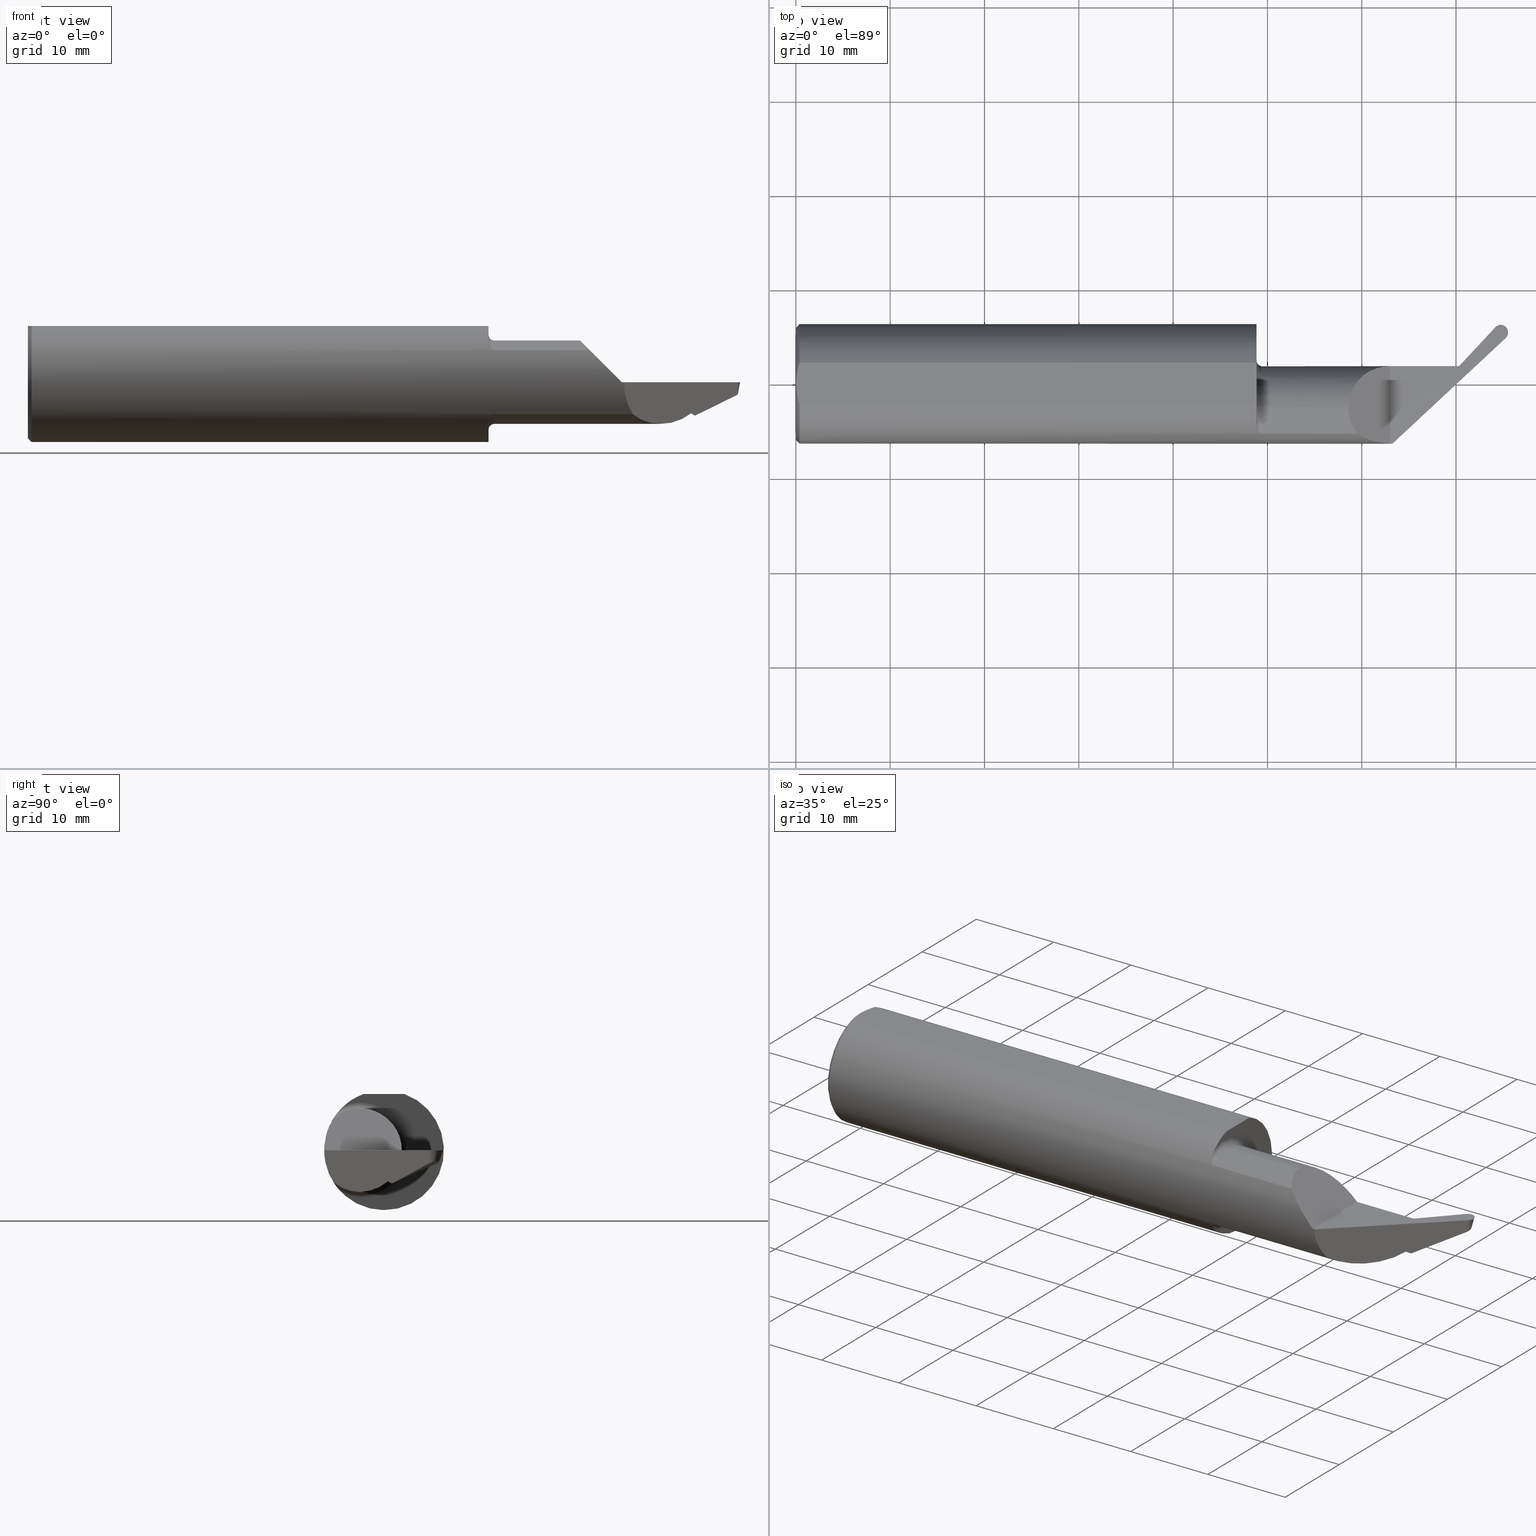
[diagram: canonical four-view strip — front | top / right | iso, engineering-drawing reading convention]
A machine part, canonical four-view strip (front | top / right | iso — engineering-drawing reading convention). The complete STEP part file that produces these views, byte-faithful:
ISO-10303-21;
HEADER;
FILE_DESCRIPTION (( 'STEP AP203' ),
    '1' );
FILE_NAME ('220323-UP50062-16.STEP',
    '2025-04-15T20:54:29',
    ( '' ),
    ( '' ),
    'SwSTEP 2.0',
    'SolidWorks 2024',
    '' );
FILE_SCHEMA (( 'CONFIG_CONTROL_DESIGN' ));
ENDSEC;

DATA;
#1 = AXIS2_PLACEMENT_3D ( 'NONE', #637, #571, #766 ) ;
#2 = CARTESIAN_POINT ( 'NONE',  ( 2.751478675528472806, 0.04932269850193316679, -0.08977927160268989182 ) ) ;
#3 = DIRECTION ( 'NONE',  ( -1.000000000000000000, -0.000000000000000000, -0.000000000000000000 ) ) ;
#4 = ORIENTED_EDGE ( 'NONE', *, *, #818, .T. ) ;
#5 = LENGTH_MEASURE_WITH_UNIT ( LENGTH_MEASURE( 0.02539999999999999897 ), #569 );
#6 = CARTESIAN_POINT ( 'NONE',  ( 2.919320466525810787, 0.2420750995226123858, 0.01553420954347928262 ) ) ;
#7 = CARTESIAN_POINT ( 'NONE',  ( 2.920485636251496597, 0.2372213815312202712, -5.510728592200695567E-17 ) ) ;
#8 = ORIENTED_EDGE ( 'NONE', *, *, #364, .T. ) ;
#9 = CARTESIAN_POINT ( 'NONE',  ( 2.480000000000000426, 0.2500000000000000000, -5.510728592200697415E-17 ) ) ;
#10 = CARTESIAN_POINT ( 'NONE',  ( 2.768419112856319586, 0.02761542476123012013, -0.1184422453791082047 ) ) ;
#11 = EDGE_LOOP ( 'NONE', ( #549, #553, #541, #175, #668, #491 ) ) ;
#12 = APPROVAL_PERSON_ORGANIZATION ( #247, #675, #119 ) ;
#13 = DIRECTION ( 'NONE',  ( 1.000000000000000000, -0.000000000000000000, -0.000000000000000000 ) ) ;
#14 = AXIS2_PLACEMENT_3D ( 'NONE', #771, #385, #514 ) ;
#15 = PLANE ( 'NONE',  #730 ) ;
#16 = AXIS2_PLACEMENT_3D ( 'NONE', #799, #417, #740 ) ;
#17 = DIRECTION ( 'NONE',  ( 0.000000000000000000, 0.000000000000000000, 1.000000000000000000 ) ) ;
#18 = DIRECTION ( 'NONE',  ( -0.6954206866754736316, -0.6321757989175356141, -0.3416779592054307590 ) ) ;
#19 = DIRECTION ( 'NONE',  ( 0.000000000000000000, 0.000000000000000000, 1.000000000000000000 ) ) ;
#20 = CARTESIAN_POINT ( 'NONE',  ( 2.956200874936907308, 0.2246758125672123629, -0.04600076249345846913 ) ) ;
#21 = CARTESIAN_POINT ( 'NONE',  ( 2.959241278066107927, 0.1888021514202671003, -0.02664907259946664581 ) ) ;
#22 = CARTESIAN_POINT ( 'NONE',  ( 1.944666560440263758, -0.2105968497256111849, 0.1344424988095964946 ) ) ;
#23 = CARTESIAN_POINT ( 'NONE',  ( 2.487763352469697598, -0.2498500000000000443, -0.04776250763339755928 ) ) ;
#24 = ADVANCED_FACE ( 'NONE', ( #712 ), #780, .T. ) ;
#25 = FACE_OUTER_BOUND ( 'NONE', #221, .T. ) ;
#26 = AXIS2_PLACEMENT_3D ( 'NONE', #485, #222, #795 ) ;
#27 = FACE_OUTER_BOUND ( 'NONE', #697, .T. ) ;
#28 = AXIS2_PLACEMENT_3D ( 'NONE', #643, #811, #367 ) ;
#29 = DIRECTION ( 'NONE',  ( 1.000000000000000000, 0.000000000000000000, 0.000000000000000000 ) ) ;
#30 = CARTESIAN_POINT ( 'NONE',  ( 2.960334798754022945, 0.1894423975373079327, -0.01870156880024754706 ) ) ;
#31 = ORIENTED_EDGE ( 'NONE', *, *, #350, .F. ) ;
#32 = LINE ( 'NONE', #286, #718 ) ;
#33 = CARTESIAN_POINT ( 'NONE',  ( 2.785170687796944211, 0.03187374538234199334, -0.1396387492611713965 ) ) ;
#34 = ADVANCED_FACE ( 'NONE', ( #141 ), #465, .F. ) ;
#35 = ORIENTED_EDGE ( 'NONE', *, *, #667, .F. ) ;
#36 = CARTESIAN_POINT ( 'NONE',  ( 1.948000000000000176, -0.09985000000000003595, 0.000000000000000000 ) ) ;
#37 = DIRECTION ( 'NONE',  ( -1.000000000000000000, -0.000000000000000000, -0.000000000000000000 ) ) ;
#38 = CIRCLE ( 'NONE', #454, 0.2348499999999984211 ) ;
#39 = ORIENTED_EDGE ( 'NONE', *, *, #324, .F. ) ;
#40 = CARTESIAN_POINT ( 'NONE',  ( 2.432237492366603249, -0.2498499999999999888, 0.04776250763339776745 ) ) ;
#41 = CARTESIAN_POINT ( 'NONE',  ( 2.606161487868354332, -0.09984999999999219500, -3.075686157521432159E-15 ) ) ;
#42 = ORIENTED_EDGE ( 'NONE', *, *, #220, .F. ) ;
#43 = CARTESIAN_POINT ( 'NONE',  ( 2.480000000000000426, -0.2498499999999999888, -5.510728592200697415E-17 ) ) ;
#44 = CC_DESIGN_PERSON_AND_ORGANIZATION_ASSIGNMENT ( #310, #558, ( #199 ) ) ;
#45 = CARTESIAN_POINT ( 'NONE',  ( 2.306000000000003158, -0.09985000000000000819, 0.1740000000000000435 ) ) ;
#46 = ORIENTED_EDGE ( 'NONE', *, *, #645, .F. ) ;
#47 = CALENDAR_DATE ( 2025, 15, 4 ) ;
#48 = EDGE_CURVE ( 'NONE', #305, #483, #503, .T. ) ;
#49 = CARTESIAN_POINT ( 'NONE',  ( 2.758993738773280580, 0.07310948323515102654, -0.02234505378485414015 ) ) ;
#50 = EDGE_CURVE ( 'NONE', #309, #124, #742, .T. ) ;
#51 = AXIS2_PLACEMENT_3D ( 'NONE', #432, #694, #804 ) ;
#52 = VERTEX_POINT ( 'NONE', #83 ) ;
#53 = CIRCLE ( 'NONE', #522, 0.02499999999999993894 ) ;
#54 = CONICAL_SURFACE ( 'NONE', #805, 0.2498499999999999888, 0.7853981633974380649 ) ;
#55 = CARTESIAN_POINT ( 'NONE',  ( 2.985520321593003068, 0.2153878141893401654, -0.07021221020933798851 ) ) ;
#56 = CARTESIAN_POINT ( 'NONE',  ( 0.000000000000000000, 0.000000000000000000, 0.000000000000000000 ) ) ;
#57 = EDGE_LOOP ( 'NONE', ( #243, #35, #351, #313 ) ) ;
#58 = CARTESIAN_POINT ( 'NONE',  ( 0.006561672718762606021, -0.05761982577936749367, 0.2348499999999999754 ) ) ;
#59 = CARTESIAN_POINT ( 'NONE',  ( 2.759505836988604077, 0.02821845109425849887, -0.1183330138671340043 ) ) ;
#60 = CARTESIAN_POINT ( 'NONE',  ( 2.921869411792910487, 0.2314570228345983471, -0.01844869356567125848 ) ) ;
#61 = EDGE_CURVE ( 'NONE', #226, #687, #544, .T. ) ;
#62 = VERTEX_POINT ( 'NONE', #627 ) ;
#63 = EDGE_CURVE ( 'NONE', #414, #226, #689, .T. ) ;
#64 = CARTESIAN_POINT ( 'NONE',  ( 2.955837149670754282, 0.2480764611098156824, -0.06886124029207293940 ) ) ;
#65 = CARTESIAN_POINT ( 'NONE',  ( 2.924636962875720947, 0.2199283054413707916, -0.05534608069692982524 ) ) ;
#66 = ORIENTED_EDGE ( 'NONE', *, *, #379, .F. ) ;
#67 = DATE_AND_TIME ( #640, #508 ) ;
#68 = CARTESIAN_POINT ( 'NONE',  ( 3.000307529027996356, 0.2273532975861257965, -0.03201572524959440252 ) ) ;
#69 = DIRECTION ( 'NONE',  ( 0.000000000000000000, 0.000000000000000000, 1.000000000000000000 ) ) ;
#70 = VERTEX_POINT ( 'NONE', #312 ) ;
#71 = CARTESIAN_POINT ( 'NONE',  ( 2.983911094868410885, 0.2140856632767930423, -0.07436896561146141837 ) ) ;
#72 = CARTESIAN_POINT ( 'NONE',  ( 1.948000000000000176, -0.09985000000000000819, 0.000000000000000000 ) ) ;
#73 = ORIENTED_EDGE ( 'NONE', *, *, #139, .T. ) ;
#74 = EDGE_CURVE ( 'NONE', #419, #565, #663, .T. ) ;
#75 = CARTESIAN_POINT ( 'NONE',  ( 2.768419112856319586, -0.09985000000000000819, 0.000000000000000000 ) ) ;
#76 = DIRECTION ( 'NONE',  ( 0.6819983600625044717, 0.7313537016191651308, 0.000000000000000000 ) ) ;
#77 = CARTESIAN_POINT ( 'NONE',  ( 2.926788729405443767, 0.2227290405431770759, -0.05407147604951945824 ) ) ;
#78 = CONICAL_SURFACE ( 'NONE', #585, 0.2498499999999999888, 0.7853981633974380649 ) ;
#79 = CARTESIAN_POINT ( 'NONE',  ( 2.306000000000002714, -0.1408247075240017798, 0.1740000000000000435 ) ) ;
#80 = ORIENTED_EDGE ( 'NONE', *, *, #786, .F. ) ;
#81 = EDGE_CURVE ( 'NONE', #683, #386, #613, .T. ) ;
#82 = DIRECTION ( 'NONE',  ( 0.000000000000000000, 0.000000000000000000, -1.000000000000000000 ) ) ;
#83 = CARTESIAN_POINT ( 'NONE',  ( 1.923000000000000265, -0.08526722699841958464, 0.2348499999999999477 ) ) ;
#84 = PRODUCT_RELATED_PRODUCT_CATEGORY ( 'detail', '', ( #194 ) ) ;
#85 = CARTESIAN_POINT ( 'NONE',  ( 3.000000000000000444, -0.2498499999999999333, -5.510728592200695567E-17 ) ) ;
#86 = B_SPLINE_CURVE_WITH_KNOTS ( 'NONE', 3,
 ( #538, #87, #30, #650 ),
 .UNSPECIFIED., .F., .F.,
 ( 4, 4 ),
 ( 0.000000000000000000, 1.000000000000000000 ),
 .UNSPECIFIED. ) ;
#87 = CARTESIAN_POINT ( 'NONE',  ( 2.957761594274301409, 0.1879358104240662075, -0.03740313760011752114 ) ) ;
#88 = EDGE_CURVE ( 'NONE', #300, #309, #548, .T. ) ;
#89 = CARTESIAN_POINT ( 'NONE',  ( 2.962990917053675677, 0.1965344664170224909, -0.05149585838116387676 ) ) ;
#90 = CARTESIAN_POINT ( 'NONE',  ( 2.954196473978710102, 0.1858484658943857504, -0.06331376499613884656 ) ) ;
#91 = DIRECTION ( 'NONE',  ( 0.7071067811865547892, 0.000000000000000000, -0.7071067811865402453 ) ) ;
#92 = CARTESIAN_POINT ( 'NONE',  ( 4.179637565737080784, 1.327902553637404726, -0.6607321790986963039 ) ) ;
#93 = CIRCLE ( 'NONE', #26, 0.2498499999999999888 ) ;
#94 = DIRECTION ( 'NONE',  ( 1.000000000000000000, 0.000000000000000000, 0.000000000000000000 ) ) ;
#95 = VECTOR ( 'NONE', #261, 39.37007874015748854 ) ;
#96 = CIRCLE ( 'NONE', #200, 0.2498499999999999888 ) ;
#97 = ORIENTED_EDGE ( 'NONE', *, *, #63, .F. ) ;
#98 = LINE ( 'NONE', #290, #276 ) ;
#99 = FACE_OUTER_BOUND ( 'NONE', #727, .T. ) ;
#100 = ORIENTED_EDGE ( 'NONE', *, *, #645, .T. ) ;
#101 = CARTESIAN_POINT ( 'NONE',  ( 2.346054777255357937, -0.2109115923885826471, 0.1339452227446442378 ) ) ;
#102 = PLANE ( 'NONE',  #624 ) ;
#103 = ORIENTED_EDGE ( 'NONE', *, *, #61, .T. ) ;
#104 = CARTESIAN_POINT ( 'NONE',  ( 2.786946298892241547, 0.03635597488645453401, -0.1380281949788706997 ) ) ;
#105 = VECTOR ( 'NONE', #739, 39.37007874015748143 ) ;
#106 = ORIENTED_EDGE ( 'NONE', *, *, #137, .F. ) ;
#107 = CARTESIAN_POINT ( 'NONE',  ( 4.760433543769110433E-16, -0.007307070001631061316, 0.2348499999999999199 ) ) ;
#108 = CARTESIAN_POINT ( 'NONE',  ( 1.948000000000000176, -0.09985000000000000819, -0.1990000000000001767 ) ) ;
#109 = ADVANCED_FACE ( 'NONE', ( #509 ), #692, .F. ) ;
#110 = ORIENTED_EDGE ( 'NONE', *, *, #139, .F. ) ;
#111 = DIRECTION ( 'NONE',  ( -0.7071067811865527908, 0.000000000000000000, -0.7071067811865423547 ) ) ;
#112 = DIRECTION ( 'NONE',  ( 0.000000000000000000, 0.000000000000000000, 1.000000000000000000 ) ) ;
#113 = EDGE_CURVE ( 'NONE', #747, #309, #803, .T. ) ;
#114 = ORIENTED_EDGE ( 'NONE', *, *, #577, .F. ) ;
#115 = CARTESIAN_POINT ( 'NONE',  ( 2.924621110822715142, 0.2199943399367920438, -0.05513473885740226982 ) ) ;
#116 = DIRECTION ( 'NONE',  ( 0.9684408309910902402, 0.000000000000000000, 0.2492435693639586669 ) ) ;
#117 = ORIENTED_EDGE ( 'NONE', *, *, #714, .F. ) ;
#118 = AXIS2_PLACEMENT_3D ( 'NONE', #146, #394, #773 ) ;
#119 = APPROVAL_ROLE ( '' ) ;
#120 = VECTOR ( 'NONE', #155, 39.37007874015748143 ) ;
#121 = CARTESIAN_POINT ( 'NONE',  ( 2.764144533880795063, 0.02000971208806607421, -0.1261334587576356525 ) ) ;
#122 = CARTESIAN_POINT ( 'NONE',  ( 1.948000000000000176, -0.09984999999999999432, -0.1740000000000001545 ) ) ;
#123 = EDGE_CURVE ( 'NONE', #386, #683, #38, .T. ) ;
#124 = VERTEX_POINT ( 'NONE', #122 ) ;
#125 = CARTESIAN_POINT ( 'NONE',  ( 2.961857614889307655, 0.2696963352741157394, -0.03026575467833236832 ) ) ;
#126 = FACE_OUTER_BOUND ( 'NONE', #172, .T. ) ;
#127 = EDGE_LOOP ( 'NONE', ( #255, #73, #510, #292, #358, #114 ) ) ;
#128 = COORDINATED_UNIVERSAL_TIME_OFFSET ( 8, 0, .BEHIND. ) ;
#129 = CARTESIAN_POINT ( 'NONE',  ( 2.750471965009137598, 0.05521386511995243079, -0.07917076052381598339 ) ) ;
#130 = CARTESIAN_POINT ( 'NONE',  ( 2.959328683422393524, 0.2434462109997723167, -5.510728592200696183E-17 ) ) ;
#131 = ORIENTED_EDGE ( 'NONE', *, *, #472, .F. ) ;
#132 =( GEOMETRIC_REPRESENTATION_CONTEXT ( 3 ) GLOBAL_UNCERTAINTY_ASSIGNED_CONTEXT ( ( #161 ) ) GLOBAL_UNIT_ASSIGNED_CONTEXT ( ( #688, #376, #441 ) ) REPRESENTATION_CONTEXT ( 'NONE', 'WORKASPACE' ) );
#133 = AXIS2_PLACEMENT_3D ( 'NONE', #787, #525, #323 ) ;
#134 = CARTESIAN_POINT ( 'NONE',  ( 2.923726509254032546, 0.2237209590150790739, -0.04320778270685891875 ) ) ;
#135 = CARTESIAN_POINT ( 'NONE',  ( 2.970069962662356122, 0.2296802198213067359, -5.510728592200697415E-17 ) ) ;
#136 = CARTESIAN_POINT ( 'NONE',  ( 2.957453567960029339, 0.2234638308222315628, -0.04599028480194394808 ) ) ;
#137 = EDGE_CURVE ( 'NONE', #144, #419, #327, .T. ) ;
#138 = CARTESIAN_POINT ( 'NONE',  ( 0.01500000000000188856, 0.000000000000000000, 0.000000000000000000 ) ) ;
#139 = EDGE_CURVE ( 'NONE', #62, #414, #633, .T. ) ;
#140 = DIRECTION ( 'NONE',  ( 0.000000000000000000, 0.000000000000000000, 1.000000000000000000 ) ) ;
#141 = FACE_OUTER_BOUND ( 'NONE', #716, .T. ) ;
#142 = EDGE_CURVE ( 'NONE', #576, #738, #750, .T. ) ;
#143 = CARTESIAN_POINT ( 'NONE',  ( 2.956756075898843594, 0.1873470888364410225, -0.04471105705483745252 ) ) ;
#144 = VERTEX_POINT ( 'NONE', #10 ) ;
#145 = CARTESIAN_POINT ( 'NONE',  ( 1.937292829746335432, -0.2068995363356189443, 0.1400856398677443326 ) ) ;
#146 = CARTESIAN_POINT ( 'NONE',  ( 0.000000000000000000, 0.1499999999999999944, 0.2348499999999999477 ) ) ;
#147 = CARTESIAN_POINT ( 'NONE',  ( 2.962820000921344565, 0.1908974601211759492, -0.0006395843446254406055 ) ) ;
#148 = ADVANCED_FACE ( 'NONE', ( #126 ), #378, .T. ) ;
#149 = AXIS2_PLACEMENT_3D ( 'NONE', #198, #459, #721 ) ;
#150 = CARTESIAN_POINT ( 'NONE',  ( 1.924856958242081584, -0.1832683170044287491, 0.1699454654953807820 ) ) ;
#151 = EDGE_CURVE ( 'NONE', #434, #300, #387, .T. ) ;
#152 = CARTESIAN_POINT ( 'NONE',  ( 2.963999813727558053, 0.2050836840735432154, -0.04903592644122235777 ) ) ;
#153 = CARTESIAN_POINT ( 'NONE',  ( 2.963324389953210236, 0.1911927751734701364, 0.003026220784801054043 ) ) ;
#154 = CARTESIAN_POINT ( 'NONE',  ( 1.948000000000000176, -0.2109115923885828414, -0.1339452227446441546 ) ) ;
#155 = DIRECTION ( 'NONE',  ( -1.000000000000000000, -0.000000000000000000, -0.000000000000000000 ) ) ;
#156 = CARTESIAN_POINT ( 'NONE',  ( 2.525106817358469868, -0.2109115923885827859, -0.1339452227446440713 ) ) ;
#157 = CARTESIAN_POINT ( 'NONE',  ( 0.000000000000000000, 0.000000000000000000, -0.2348499999999984211 ) ) ;
#158 = CARTESIAN_POINT ( 'NONE',  ( 0.01500000000000188856, 0.08526722699841957076, 0.2348499999999999477 ) ) ;
#159 = VECTOR ( 'NONE', #297, 39.37007874015748143 ) ;
#160 = ORIENTED_EDGE ( 'NONE', *, *, #50, .F. ) ;
#161 = UNCERTAINTY_MEASURE_WITH_UNIT (LENGTH_MEASURE( 1.000000000000000082E-05 ), #688, 'distance_accuracy_value', 'NONE');
#162 = DIRECTION ( 'NONE',  ( 1.000000000000000000, -0.000000000000000000, -0.000000000000000000 ) ) ;
#163 = CARTESIAN_POINT ( 'NONE',  ( 1.923000000000000043, -0.1743076965831586722, -0.1795024430660134840 ) ) ;
#164 = B_SPLINE_CURVE_WITH_KNOTS ( 'NONE', 3,
 ( #423, #107, #355, #617, #820, #58, #306, #176 ),
 .UNSPECIFIED., .F., .F.,
 ( 4, 2, 2, 4 ),
 ( 0.007188111787249049436, 0.007736101870951915191, 0.008284091954654780945, 0.009380072122060512455 ),
 .UNSPECIFIED. ) ;
#165 = ORIENTED_EDGE ( 'NONE', *, *, #88, .T. ) ;
#166 = CARTESIAN_POINT ( 'NONE',  ( 2.386373634735572402, -0.2365171946451294638, 0.09362636526442918994 ) ) ;
#167 = CARTESIAN_POINT ( 'NONE',  ( 1.923000000000000265, -0.1642165498247367128, -0.1883028073706277949 ) ) ;
#168 = EDGE_LOOP ( 'NONE', ( #622, #384, #568, #183 ) ) ;
#169 = CARTESIAN_POINT ( 'NONE',  ( 2.346054777255357937, -0.2109115923885826471, 0.1339452227446442378 ) ) ;
#170 = FACE_OUTER_BOUND ( 'NONE', #513, .T. ) ;
#171 = EDGE_CURVE ( 'NONE', #62, #483, #453, .T. ) ;
#172 = EDGE_LOOP ( 'NONE', ( #498, #676, #187, #608, #757, #426, #42, #557, #246, #100, #751, #250, #31 ) ) ;
#173 = CARTESIAN_POINT ( 'NONE',  ( 1.923000000000000265, -0.09984999999999999432, -0.1740000000000000435 ) ) ;
#174 = DIRECTION ( 'NONE',  ( 0.000000000000000000, 0.000000000000000000, -1.000000000000000000 ) ) ;
#175 = ORIENTED_EDGE ( 'NONE', *, *, #418, .F. ) ;
#176 = CARTESIAN_POINT ( 'NONE',  ( 0.01500000000000187815, -0.08526722699841957076, 0.2348499999999999477 ) ) ;
#177 = CARTESIAN_POINT ( 'NONE',  ( 2.964459002465122062, 0.1918570801684355287, 0.01127237227428877844 ) ) ;
#178 = ORIENTED_EDGE ( 'NONE', *, *, #48, .F. ) ;
#179 = CARTESIAN_POINT ( 'NONE',  ( 2.924803103386683034, 0.2192362181263609322, -0.05756108976694612744 ) ) ;
#180 = ADVANCED_FACE ( 'NONE', ( #458 ), #572, .F. ) ;
#181 = DIRECTION ( 'NONE',  ( 0.000000000000000000, 0.000000000000000000, -1.000000000000000000 ) ) ;
#182 = SECURITY_CLASSIFICATION ( '', '', #630 ) ;
#183 = ORIENTED_EDGE ( 'NONE', *, *, #113, .T. ) ;
#184 = CIRCLE ( 'NONE', #720, 0.2498499999999999888 ) ;
#185 = CARTESIAN_POINT ( 'NONE',  ( 2.922358585765525429, 0.2294192832161828788, -0.02497043098068999628 ) ) ;
#186 = CARTESIAN_POINT ( 'NONE',  ( 2.972643988176406182, 0.2240735943474627678, -5.510728592200698648E-17 ) ) ;
#187 = ORIENTED_EDGE ( 'NONE', *, *, #577, .T. ) ;
#188 = PERSON_AND_ORGANIZATION_ROLE ( 'classification_officer' ) ;
#189 = CARTESIAN_POINT ( 'NONE',  ( 3.009254293762318788, 0.2345928230579831519, -0.008905549368366313598 ) ) ;
#190 = B_SPLINE_CURVE_WITH_KNOTS ( 'NONE', 3,
 ( #158, #223, #552, #555 ),
 .UNSPECIFIED., .F., .F.,
 ( 4, 4 ),
 ( 0.004994743219357597463, 0.007188111787249049436 ),
 .UNSPECIFIED. ) ;
#191 = DIRECTION ( 'NONE',  ( -0.2418447626479795498, -0.2418447626479768853, 0.9396926207859068736 ) ) ;
#192 =( BOUNDED_CURVE ( )  B_SPLINE_CURVE ( 3, ( #524, #724, #79, #713 ),
 .UNSPECIFIED., .F., .T. ) 
 B_SPLINE_CURVE_WITH_KNOTS ( ( 4, 4 ),
 ( 5.590916938044860451, 6.283185307179586232 ),
 .UNSPECIFIED. ) 
 CURVE ( )  GEOMETRIC_REPRESENTATION_ITEM ( )  RATIONAL_B_SPLINE_CURVE ( ( 1.000000000000000000, 0.9604608466326349792, 0.9604608466326349792, 1.000000000000000000 ) ) 
 REPRESENTATION_ITEM ( '' )  );
#193 = APPROVAL ( #241, 'UNSPECIFIED' ) ;
#194 = PRODUCT ( '220323-UP50062-16', '220323-UP50062-16', '', ( #562 ) ) ;
#195 = ORIENTED_EDGE ( 'NONE', *, *, #759, .F. ) ;
#196 = CARTESIAN_POINT ( 'NONE',  ( 2.985593596869578814, 0.2154471069333668554, -0.07002293457956768052 ) ) ;
#197 = CARTESIAN_POINT ( 'NONE',  ( 2.973463357364606985, 0.2178119426117045565, -5.510728592200697415E-17 ) ) ;
#198 = CARTESIAN_POINT ( 'NONE',  ( 1.923000000000000265, 0.09915000000000015468, 0.000000000000000000 ) ) ;
#199 = PRODUCT_DEFINITION_FORMATION_WITH_SPECIFIED_SOURCE ( 'ANY', '', #194, .NOT_KNOWN. ) ;
#200 = AXIS2_PLACEMENT_3D ( 'NONE', #594, #13, #529 ) ;
#201 = CARTESIAN_POINT ( 'NONE',  ( 2.765672377942582028, 0.02262425438727416749, -0.1236489610651841375 ) ) ;
#202 = CARTESIAN_POINT ( 'NONE',  ( 1.465514825093801932, 1.715364825093786516, -0.04599999999999999922 ) ) ;
#203 = ORIENTED_EDGE ( 'NONE', *, *, #679, .T. ) ;
#204 = CARTESIAN_POINT ( 'NONE',  ( 2.785170687796944211, 0.03187374538234199334, -0.1396387492611713965 ) ) ;
#205 = DIRECTION ( 'NONE',  ( 0.6819983600625090236, 0.7313537016191605789, 0.000000000000000000 ) ) ;
#206 = ORIENTED_EDGE ( 'NONE', *, *, #50, .T. ) ;
#207 = APPROVAL_DATE_TIME ( #777, #490 ) ;
#208 = ADVANCED_FACE ( 'NONE', ( #329 ), #15, .F. ) ;
#209 = DIRECTION ( 'NONE',  ( -1.000000000000000000, -0.000000000000000000, -0.000000000000000000 ) ) ;
#210 = LINE ( 'NONE', #266, #411 ) ;
#211 = ORIENTED_EDGE ( 'NONE', *, *, #338, .F. ) ;
#212 = CYLINDRICAL_SURFACE ( 'NONE', #224, 0.1740000000000000435 ) ;
#213 = CIRCLE ( 'NONE', #133, 0.1740000000000001545 ) ;
#214 = CARTESIAN_POINT ( 'NONE',  ( 1.931171543247812039, -0.1999759995858462480, 0.1499037593488199704 ) ) ;
#215 = CARTESIAN_POINT ( 'NONE',  ( 2.940340066052640644, 0.2293452590027351690, -0.04888103667594673185 ) ) ;
#216 = CARTESIAN_POINT ( 'NONE',  ( 2.767097696724142519, 0.02516030885774150905, -0.1210843971761442067 ) ) ;
#217 = CARTESIAN_POINT ( 'NONE',  ( 1.923369308096891217, -0.1740236709404001658, 0.1794003879942982493 ) ) ;
#218 = CARTESIAN_POINT ( 'NONE',  ( 2.642154845230877402, -0.09984999999999999432, -0.1740000000000000435 ) ) ;
#219 = CARTESIAN_POINT ( 'NONE',  ( 1.937241547894475113, -0.2068583287092629897, -0.1401468808397461907 ) ) ;
#220 = EDGE_CURVE ( 'NONE', #52, #434, #184, .T. ) ;
#221 = EDGE_LOOP ( 'NONE', ( #422, #634, #160, #117, #518, #638, #289, #431, #361 ) ) ;
#222 = DIRECTION ( 'NONE',  ( 1.000000000000000000, -0.000000000000000000, -0.000000000000000000 ) ) ;
#223 = CARTESIAN_POINT ( 'NONE',  ( 0.005550618807728169291, 0.05757865339283836648, 0.2348499999999999477 ) ) ;
#224 = AXIS2_PLACEMENT_3D ( 'NONE', #328, #408, #781 ) ;
#225 = EDGE_CURVE ( 'NONE', #124, #70, #213, .T. ) ;
#226 = VERTEX_POINT ( 'NONE', #719 ) ;
#227 = CC_DESIGN_PERSON_AND_ORGANIZATION_ASSIGNMENT ( #753, #447, ( #199 ) ) ;
#228 = CARTESIAN_POINT ( 'NONE',  ( 2.378073159852920337, 0.07415000000000004921, 0.1019268401470814489 ) ) ;
#229 = VERTEX_POINT ( 'NONE', #659 ) ;
#230 = B_SPLINE_CURVE_WITH_KNOTS ( 'NONE', 3,
 ( #33, #104, #291, #233 ),
 .UNSPECIFIED., .F., .F.,
 ( 4, 4 ),
 ( 0.001035967809282138533, 0.001423204942847076850 ),
 .UNSPECIFIED. ) ;
#231 = DIRECTION ( 'NONE',  ( -1.000000000000000000, -0.000000000000000000, -0.000000000000000000 ) ) ;
#232 = EDGE_CURVE ( 'NONE', #642, #226, #210, .T. ) ;
#233 = CARTESIAN_POINT ( 'NONE',  ( 2.790784401504194712, 0.04518502136800224556, -0.1347681037552297678 ) ) ;
#234 = EDGE_LOOP ( 'NONE', ( #450, #295 ) ) ;
#235 = LINE ( 'NONE', #420, #366 ) ;
#236 = CYLINDRICAL_SURFACE ( 'NONE', #412, 0.1740000000000000435 ) ;
#237 = CC_DESIGN_APPROVAL ( #675, ( #335 ) ) ;
#238 = VECTOR ( 'NONE', #534, 39.37007874015748143 ) ;
#239 = CLOSED_SHELL ( 'NONE', ( #445, #180, #606, #580, #493, #526, #628, #655, #109, #148, #34, #566, #672, #409, #726, #807, #24, #460, #208, #284 ) ) ;
#240 = ORIENTED_EDGE ( 'NONE', *, *, #171, .T. ) ;
#241 = APPROVAL_STATUS ( 'not_yet_approved' ) ;
#242 = CARTESIAN_POINT ( 'NONE',  ( 2.965062680611385115, 0.1922105280669126337, 0.01565979211372933375 ) ) ;
#243 = ORIENTED_EDGE ( 'NONE', *, *, #810, .F. ) ;
#244 = CARTESIAN_POINT ( 'NONE',  ( 2.750324424188840933, 0.05790952544216176889, -0.07365018080836756298 ) ) ;
#245 = CARTESIAN_POINT ( 'NONE',  ( 2.967964022025022075, 0.2332724087456661544, -5.510728592200697415E-17 ) ) ;
#246 = ORIENTED_EDGE ( 'NONE', *, *, #736, .T. ) ;
#247 = PERSON_AND_ORGANIZATION ( #430, #600 ) ;
#248 = CARTESIAN_POINT ( 'NONE',  ( 2.965812875359780332, 0.2838999276135536487, -0.004909707753859851413 ) ) ;
#249 = CARTESIAN_POINT ( 'NONE',  ( 2.768419112856319586, 0.01579291558687999364, -0.1300104460209476342 ) ) ;
#250 = ORIENTED_EDGE ( 'NONE', *, *, #429, .F. ) ;
#251 = AXIS2_PLACEMENT_3D ( 'NONE', #320, #647, #69 ) ;
#252 = CARTESIAN_POINT ( 'NONE',  ( 2.965500201641321443, 0.2827770963699809958, -0.006914169795889478845 ) ) ;
#253 = CC_DESIGN_PERSON_AND_ORGANIZATION_ASSIGNMENT ( #758, #188, ( #182 ) ) ;
#254 = CARTESIAN_POINT ( 'NONE',  ( 2.773993255702161154, 0.02114554192837313218, -0.1332494012405315009 ) ) ;
#255 = ORIENTED_EDGE ( 'NONE', *, *, #171, .F. ) ;
#256 = CARTESIAN_POINT ( 'NONE',  ( 2.987661221085930130, 0.2171201830257414866, -0.06468210348397136766 ) ) ;
#257 = DIRECTION ( 'NONE',  ( 0.000000000000000000, 0.000000000000000000, 1.000000000000000000 ) ) ;
#258 = EDGE_LOOP ( 'NONE', ( #346, #396, #573, #731, #495, #469 ) ) ;
#259 = APPROVAL_ROLE ( '' ) ;
#260 = LINE ( 'NONE', #85, #120 ) ;
#261 = DIRECTION ( 'NONE',  ( -0.7313537016191669071, -0.6819983600625022513, 0.000000000000000000 ) ) ;
#262 = ORIENTED_EDGE ( 'NONE', *, *, #714, .T. ) ;
#263 = AXIS2_PLACEMENT_3D ( 'NONE', #202, #191, #116 ) ;
#264 = CONICAL_SURFACE ( 'NONE', #299, 0.1739999999999999880, 0.8203047484373228171 ) ;
#265 = CARTESIAN_POINT ( 'NONE',  ( 2.962731998608899797, 0.1908459355917786204, -0.001279168689276280598 ) ) ;
#266 = CARTESIAN_POINT ( 'NONE',  ( 3.087804721731443713, 0.4329423093960939606, 0.04147024745865552503 ) ) ;
#267 = CARTESIAN_POINT ( 'NONE',  ( 2.939986576595883694, 0.2292964530446391369, -0.04898457376559436222 ) ) ;
#268 = EDGE_CURVE ( 'NONE', #683, #680, #476, .T. ) ;
#269 = DIRECTION ( 'NONE',  ( 1.000000000000000000, -0.000000000000000000, -0.000000000000000000 ) ) ;
#270 = CARTESIAN_POINT ( 'NONE',  ( 0.01500000000000188856, 0.000000000000000000, -0.2498499999999999888 ) ) ;
#271 = CARTESIAN_POINT ( 'NONE',  ( 2.963094408062943330, 0.2151718262580614438, -0.04667260391959004995 ) ) ;
#272 = CARTESIAN_POINT ( 'NONE',  ( 2.764144533880795063, 0.02000971208806607421, -0.1261334587576356525 ) ) ;
#273 = CARTESIAN_POINT ( 'NONE',  ( 3.826420851464049200, 1.657282468372987871, -0.7901417016499502344 ) ) ;
#274 = CARTESIAN_POINT ( 'NONE',  ( 2.960114955327068920, 0.1909213814978031609, -0.05368064883897383233 ) ) ;
#275 =( BOUNDED_CURVE ( )  B_SPLINE_CURVE ( 3, ( #542, #410, #677, #218 ),
 .UNSPECIFIED., .F., .T. ) 
 B_SPLINE_CURVE_WITH_KNOTS ( ( 4, 4 ),
 ( 0.8308160677390153959, 1.523084436873744174 ),
 .UNSPECIFIED. ) 
 CURVE ( )  GEOMETRIC_REPRESENTATION_ITEM ( )  RATIONAL_B_SPLINE_CURVE ( ( 1.000000000000000000, 0.9604608466326346461, 0.9604608466326346461, 1.000000000000000000 ) ) 
 REPRESENTATION_ITEM ( '' )  );
#276 = VECTOR ( 'NONE', #344, 39.37007874015748143 ) ;
#277 = DIRECTION ( 'NONE',  ( -0.7064334285460631691, 0.6587598294711664026, -0.2588190451025079164 ) ) ;
#278 = CARTESIAN_POINT ( 'NONE',  ( 1.923000000000000265, 0.07414999999999999369, -5.510728592200695567E-17 ) ) ;
#279 = LINE ( 'NONE', #488, #105 ) ;
#280 = CARTESIAN_POINT ( 'NONE',  ( 1.944640240609051940, -0.2105909676090304827, -0.1344517602273910262 ) ) ;
#281 = VERTEX_POINT ( 'NONE', #715 ) ;
#282 = CARTESIAN_POINT ( 'NONE',  ( 2.768419112856319586, 0.01579291558687999364, -0.1300104460209476342 ) ) ;
#283 = CARTESIAN_POINT ( 'NONE',  ( 2.920485636251496597, 0.2372213815312202712, -5.510728592200695567E-17 ) ) ;
#284 = ADVANCED_FACE ( 'NONE', ( #27 ), #725, .F. ) ;
#285 = EDGE_LOOP ( 'NONE', ( #604, #103, #794, #767 ) ) ;
#286 = CARTESIAN_POINT ( 'NONE',  ( 1.923000000000000265, -0.09985000000000000819, 0.1740000000000000435 ) ) ;
#287 = AXIS2_PLACEMENT_3D ( 'NONE', #36, #612, #550 ) ;
#288 = DIRECTION ( 'NONE',  ( -0.7313537016191663520, -0.6819983600625026954, 0.000000000000000000 ) ) ;
#289 = ORIENTED_EDGE ( 'NONE', *, *, #507, .T. ) ;
#290 = CARTESIAN_POINT ( 'NONE',  ( 2.606161487868362325, -0.09985000000000000819, -5.510728592200695567E-17 ) ) ;
#291 = CARTESIAN_POINT ( 'NONE',  ( 2.788821398185262090, 0.04079124423844344288, -0.1364041217729991540 ) ) ;
#292 = ORIENTED_EDGE ( 'NONE', *, *, #303, .F. ) ;
#293 = PLANE ( 'NONE',  #792 ) ;
#294 = CARTESIAN_POINT ( 'NONE',  ( 2.480000000000000426, 0.07415000000000000757, -5.510728592200697415E-17 ) ) ;
#295 = ORIENTED_EDGE ( 'NONE', *, *, #81, .T. ) ;
#296 = APPROVAL_DATE_TIME ( #698, #193 ) ;
#297 = DIRECTION ( 'NONE',  ( 0.000000000000000000, -1.000000000000000000, 0.000000000000000000 ) ) ;
#298 = LOCAL_TIME ( 13, 54, 29.00000000000000000, #388 ) ;
#299 = AXIS2_PLACEMENT_3D ( 'NONE', #75, #322, #583 ) ;
#300 = VERTEX_POINT ( 'NONE', #586 ) ;
#301 = PERSON_AND_ORGANIZATION ( #430, #600 ) ;
#302 = CARTESIAN_POINT ( 'NONE',  ( 2.984679070592298533, 0.2147070923610409077, -0.07238522572524476451 ) ) ;
#303 = EDGE_CURVE ( 'NONE', #738, #281, #775, .T. ) ;
#304 = CARTESIAN_POINT ( 'NONE',  ( 2.962908003233793330, 0.1909489846505771082, 0.000000000000000000 ) ) ;
#305 = VERTEX_POINT ( 'NONE', #156 ) ;
#306 = CARTESIAN_POINT ( 'NONE',  ( 0.01031857118576194089, -0.07154970585445759312, 0.2348499999999999754 ) ) ;
#307 = CARTESIAN_POINT ( 'NONE',  ( 2.964756194820201696, 0.2801053204744628489, -0.01168378535206173255 ) ) ;
#308 = DIRECTION ( 'NONE',  ( -1.000000000000000000, -0.000000000000000000, -0.000000000000000000 ) ) ;
#309 = VERTEX_POINT ( 'NONE', #779 ) ;
#310 = PERSON_AND_ORGANIZATION ( #430, #600 ) ;
#311 = CARTESIAN_POINT ( 'NONE',  ( 2.955494642648246906, 0.2468464965708631886, -0.07105695513785018069 ) ) ;
#312 = CARTESIAN_POINT ( 'NONE',  ( 1.948000000000000176, -0.2109115923885828414, -0.1339452227446441546 ) ) ;
#313 = ORIENTED_EDGE ( 'NONE', *, *, #225, .F. ) ;
#314 = EDGE_CURVE ( 'NONE', #434, #747, #501, .T. ) ;
#315 = APPLICATION_PROTOCOL_DEFINITION ( 'international standard', 'config_control_design', 1994, #484 ) ;
#316 = CARTESIAN_POINT ( 'NONE',  ( 2.921422111008532774, 0.2333203323737787493, -0.01248521549020794805 ) ) ;
#317 = CARTESIAN_POINT ( 'NONE',  ( 2.920485636251496597, 0.2372213815312202712, -5.510728592200695567E-17 ) ) ;
#318 = VERTEX_POINT ( 'NONE', #603 ) ;
#319 = CARTESIAN_POINT ( 'NONE',  ( 2.983143119144235023, 0.2134642341924769815, -0.07635270549756401071 ) ) ;
#320 = CARTESIAN_POINT ( 'NONE',  ( 2.768419112856319586, -0.09985000000000000819, 0.000000000000000000 ) ) ;
#321 = CARTESIAN_POINT ( 'NONE',  ( 2.938020995482726772, 0.2289505377863259583, -0.04957947392651339269 ) ) ;
#322 = DIRECTION ( 'NONE',  ( 1.000000000000000000, 0.000000000000000000, 0.000000000000000000 ) ) ;
#323 = DIRECTION ( 'NONE',  ( 0.000000000000000000, 0.000000000000000000, 1.000000000000000000 ) ) ;
#324 = EDGE_CURVE ( 'NONE', #687, #62, #86, .T. ) ;
#325 = LOCAL_TIME ( 13, 54, 29.00000000000000000, #764 ) ;
#326 = CARTESIAN_POINT ( 'NONE',  ( 2.930421751955665677, 0.2260128898536435949, -0.05229130964572674400 ) ) ;
#327 = CIRCLE ( 'NONE', #251, 0.1739999999999999880 ) ;
#328 = CARTESIAN_POINT ( 'NONE',  ( 1.923000000000000265, -0.09985000000000000819, 0.000000000000000000 ) ) ;
#329 = FACE_OUTER_BOUND ( 'NONE', #11, .T. ) ;
#330 = CARTESIAN_POINT ( 'NONE',  ( 2.924636962875720947, 0.2199283054413707916, -0.05534608069692982524 ) ) ;
#331 = SHAPE_DEFINITION_REPRESENTATION ( #449, #768 ) ;
#332 = FACE_OUTER_BOUND ( 'NONE', #800, .T. ) ;
#333 = CARTESIAN_POINT ( 'NONE',  ( 1.923000000000000265, -0.09985000000000000819, 0.000000000000000000 ) ) ;
#334 = CARTESIAN_POINT ( 'NONE',  ( 2.949329345747823350, 0.2291749786949318080, -0.04661132765998166755 ) ) ;
#335 = PRODUCT_DEFINITION ( 'UNKNOWN', '', #199, #347 ) ;
#336 = CARTESIAN_POINT ( 'NONE',  ( 1.923000000000000265, -0.09985000000000000819, 0.000000000000000000 ) ) ;
#337 = CARTESIAN_POINT ( 'NONE',  ( 1.946283494997618213, -0.2109115923885824806, -0.1339452227446445154 ) ) ;
#339 = EDGE_LOOP ( 'NONE', ( #693, #211, #165, #206 ) ) ;
#338 = EDGE_CURVE ( 'NONE', #300, #611, #601, .T. ) ;
#340 = AXIS2_PLACEMENT_3D ( 'NONE', #336, #209, #598 ) ;
#341 = AXIS2_PLACEMENT_3D ( 'NONE', #9, #717, #395 ) ;
#342 = CARTESIAN_POINT ( 'NONE',  ( 1.925978594482057771, -0.1877222700471115058, 0.1650084968907562233 ) ) ;
#343 = ORIENTED_EDGE ( 'NONE', *, *, #61, .F. ) ;
#344 = DIRECTION ( 'NONE',  ( 0.6819983600625073583, 0.7313537016191622442, 0.000000000000000000 ) ) ;
#345 = CARTESIAN_POINT ( 'NONE',  ( 0.000000000000000000, 0.000000000000000000, 0.2348499999999984211 ) ) ;
#346 = ORIENTED_EDGE ( 'NONE', *, *, #429, .T. ) ;
#347 = DESIGN_CONTEXT ( 'detailed design', #484, 'design' ) ;
#348 = CARTESIAN_POINT ( 'NONE',  ( 0.01500000000000188856, 0.08526722699841957076, 0.2348499999999999477 ) ) ;
#349 = CARTESIAN_POINT ( 'NONE',  ( 1.923000000000000265, 0.000000000000000000, 0.000000000000000000 ) ) ;
#350 = EDGE_CURVE ( 'NONE', #70, #515, #380, .T. ) ;
#351 = ORIENTED_EDGE ( 'NONE', *, *, #442, .T. ) ;
#352 = FACE_OUTER_BOUND ( 'NONE', #168, .T. ) ;
#353 = DIRECTION ( 'NONE',  ( 1.000000000000000000, 0.000000000000000000, 0.000000000000000000 ) ) ;
#354 = EDGE_LOOP ( 'NONE', ( #763, #262, #403, #761 ) ) ;
#355 = CARTESIAN_POINT ( 'NONE',  ( 0.0003471601452190532571, -0.01466881147478109673, 0.2348499999999999754 ) ) ;
#356 = CARTESIAN_POINT ( 'NONE',  ( 1.923000000000000265, 0.1499999999999999944, 0.2348499999999999477 ) ) ;
#357 = DIMENSIONAL_EXPONENTS ( 1.000000000000000000, 0.000000000000000000, 0.000000000000000000, 0.000000000000000000, 0.000000000000000000, 0.000000000000000000, 0.000000000000000000 ) ;
#358 = ORIENTED_EDGE ( 'NONE', *, *, #142, .F. ) ;
#359 = APPROVAL_DATE_TIME ( #814, #675 ) ;
#360 = CARTESIAN_POINT ( 'NONE',  ( 2.768419112856318698, 0.07415000000000042391, 2.185478394931410575E-15 ) ) ;
#361 = ORIENTED_EDGE ( 'NONE', *, *, #137, .T. ) ;
#362 = MANIFOLD_SOLID_BREP ( 'Fillet1', #239 ) ;
#363 = PERSON_AND_ORGANIZATION_ROLE ( 'creator' ) ;
#364 = EDGE_CURVE ( 'NONE', #611, #124, #53, .T. ) ;
#365 = CARTESIAN_POINT ( 'NONE',  ( 2.955181968929794678, 0.2457236653272987237, -0.07306141717984715456 ) ) ;
#366 = VECTOR ( 'NONE', #539, 39.37007874015748143 ) ;
#367 = DIRECTION ( 'NONE',  ( 0.000000000000000000, 0.000000000000000000, -1.000000000000000000 ) ) ;
#368 = VECTOR ( 'NONE', #618, 39.37007874015748854 ) ;
#369 = VECTOR ( 'NONE', #37, 39.37007874015748143 ) ;
#370 = ORIENTED_EDGE ( 'NONE', *, *, #123, .F. ) ;
#371 = COORDINATED_UNIVERSAL_TIME_OFFSET ( 8, 0, .BEHIND. ) ;
#372 = EDGE_CURVE ( 'NONE', #487, #52, #607, .T. ) ;
#373 = CARTESIAN_POINT ( 'NONE',  ( 2.925135384408535266, 0.2178520434962689656, -0.06199110790696114870 ) ) ;
#374 = CARTESIAN_POINT ( 'NONE',  ( 2.951875433620106293, 0.2469048083345366518, -5.510728592200695567E-17 ) ) ;
#375 = ORIENTED_EDGE ( 'NONE', *, *, #142, .T. ) ;
#376 =( NAMED_UNIT ( * ) PLANE_ANGLE_UNIT ( ) SI_UNIT ( $, .RADIAN. ) );
#377 = CARTESIAN_POINT ( 'NONE',  ( 2.956708795719570571, 0.2512065976038149184, -0.06327336604695324440 ) ) ;
#378 = CYLINDRICAL_SURFACE ( 'NONE', #1, 0.2498499999999999888 ) ;
#379 = EDGE_CURVE ( 'NONE', #565, #642, #230, .T. ) ;
#380 = B_SPLINE_CURVE_WITH_KNOTS ( 'NONE', 3,
 ( #154, #337, #280, #540, #788, #219, #711, #674, #486, #489, #163, #167 ),
 .UNSPECIFIED., .F., .F.,
 ( 4, 2, 2, 2, 2, 4 ),
 ( 1.963928090037295910E-07, 0.0001286476382168832760, 0.0002570988836247628615, 0.0005140013744405208399, 0.001027806356072036688, 0.002055416319335072722 ),
 .UNSPECIFIED. ) ;
#381 = ORIENTED_EDGE ( 'NONE', *, *, #372, .F. ) ;
#382 = PERSON_AND_ORGANIZATION_ROLE ( 'design_owner' ) ;
#383 = CARTESIAN_POINT ( 'NONE',  ( 2.960095184745429986, 0.2633673363430146797, -0.04156419172533377254 ) ) ;
#384 = ORIENTED_EDGE ( 'NONE', *, *, #151, .F. ) ;
#385 = DIRECTION ( 'NONE',  ( 0.000000000000000000, -1.000000000000000000, 0.000000000000000000 ) ) ;
#386 = VERTEX_POINT ( 'NONE', #345 ) ;
#387 = CIRCLE ( 'NONE', #770, 0.1990000000000001767 ) ;
#388 = COORDINATED_UNIVERSAL_TIME_OFFSET ( 8, 0, .BEHIND. ) ;
#389 = CARTESIAN_POINT ( 'NONE',  ( 2.955866982974705959, 0.2481835944049896048, -0.06866998748822206178 ) ) ;
#390 = CARTESIAN_POINT ( 'NONE',  ( 2.923253187334322600, 0.2256926641379763399, -0.03689738713134253778 ) ) ;
#391 = CARTESIAN_POINT ( 'NONE',  ( 2.958104432554609531, 0.2227543725835986199, -0.04600536480323908634 ) ) ;
#392 = DIRECTION ( 'NONE',  ( -0.6819983600625044717, -0.7313537016191651308, 0.000000000000000000 ) ) ;
#393 = DIRECTION ( 'NONE',  ( 0.5720007877782458117, 0.7467417517062150401, 0.3393992560978876250 ) ) ;
#394 = DIRECTION ( 'NONE',  ( -0.000000000000000000, 0.000000000000000000, -1.000000000000000000 ) ) ;
#395 = DIRECTION ( 'NONE',  ( -1.000000000000000000, 0.000000000000000000, 0.000000000000000000 ) ) ;
#396 = ORIENTED_EDGE ( 'NONE', *, *, #372, .T. ) ;
#397 = CARTESIAN_POINT ( 'NONE',  ( 1.940579013400958397, -0.2089922484211629850, 0.1369264698045240813 ) ) ;
#398 = CC_DESIGN_APPROVAL ( #490, ( #182 ) ) ;
#399 = CARTESIAN_POINT ( 'NONE',  ( 2.525106817358469868, -0.2109115923885827859, -0.1339452227446440713 ) ) ;
#400 = AXIS2_PLACEMENT_3D ( 'NONE', #273, #723, #76 ) ;
#401 = CARTESIAN_POINT ( 'NONE',  ( 2.955972232846721059, 0.1868881560736391501, -0.05040788172737522416 ) ) ;
#402 = CARTESIAN_POINT ( 'NONE',  ( 1.923000000000000265, 0.000000000000000000, 0.000000000000000000 ) ) ;
#403 = ORIENTED_EDGE ( 'NONE', *, *, #113, .F. ) ;
#404 = B_SPLINE_CURVE_WITH_KNOTS ( 'NONE', 3,
 ( #360, #621, #49, #560, #806, #506, #500, #244, #129, #2, #749, #452, #59, #121 ),
 .UNSPECIFIED., .F., .F.,
 ( 4, 2, 2, 2, 2, 2, 4 ),
 ( 5.022654433302922073E-17, 0.0009210645519937476697, 0.001381596827990601989, 0.001842129103987456308, 0.002302661379984310194, 0.002763193655981164946, 0.003684258207974874452 ),
 .UNSPECIFIED. ) ;
#405 = CARTESIAN_POINT ( 'NONE',  ( 2.480000000000000426, -0.2498499999999999888, -5.510728592200697415E-17 ) ) ;
#406 = CARTESIAN_POINT ( 'NONE',  ( 1.948000000000000176, -0.2109115923885828692, 0.1339452227446441268 ) ) ;
#407 = EDGE_CURVE ( 'NONE', #776, #386, #190, .T. ) ;
#408 = DIRECTION ( 'NONE',  ( -1.000000000000000000, -0.000000000000000000, -0.000000000000000000 ) ) ;
#409 = ADVANCED_FACE ( 'NONE', ( #670 ), #102, .F. ) ;
#410 = CARTESIAN_POINT ( 'NONE',  ( 2.557592675252737369, -0.1793692571805422242, -0.1600987644990813641 ) ) ;
#411 = VECTOR ( 'NONE', #393, 39.37007874015748854 ) ;
#412 = AXIS2_PLACEMENT_3D ( 'NONE', #743, #428, #112 ) ;
#413 = PLANE ( 'NONE',  #481 ) ;
#414 = VERTEX_POINT ( 'NONE', #283 ) ;
#415 = CARTESIAN_POINT ( 'NONE',  ( 2.688396025911343745, -0.05672940141464750258, -0.1740000000000000435 ) ) ;
#416 =( BOUNDED_SURFACE ( )  B_SPLINE_SURFACE ( 3, 3, ( 
 ( #625, #6, #690, #448, #436, #704, #760, #316, #185, #134, #567, #809, #115, #179, #636, #373 ),
 ( #631, #248, #252, #307, #755, #443, #695, #125, #383, #512, #377, #389, #64, #311, #365, #765 ),
 ( #563, #570, #189, #646, #516, #699, #641, #68, #745, #574, #256, #196, #55, #302, #71, #319 ),
 ( #242, #497, #177, #433, #153, #147, #265, #533, #21, #143, #401, #658, #457, #466, #785, #90 ) ),
 .UNSPECIFIED., .F., .F., .T. ) 
 B_SPLINE_SURFACE_WITH_KNOTS ( ( 4, 4 ),
 ( 4, 2, 2, 2, 2, 2, 2, 4 ),
 ( 0.000000000000000000, 1.000000000000000000 ),
 ( -0.1050729136020307763, 0.03079758278088098183, 0.2182308056090193071, 0.2578443577945064846, 1.023697847556390039, 1.376538662610168551, 1.389502546609998612, 1.525373042992910433 ),
 .UNSPECIFIED. ) 
 GEOMETRIC_REPRESENTATION_ITEM ( )  RATIONAL_B_SPLINE_SURFACE ( (
 ( 1.000000000000000000, 1.000000000000000000, 1.000000000000000000, 1.000000000000000000, 1.000000000000000000, 1.000000000000000000, 1.000000000000000000, 1.000000000000000000, 1.000000000000000000, 1.000000000000000000, 1.000000000000000000, 1.000000000000000000, 1.000000000000000000, 1.000000000000000000, 1.000000000000000000, 1.000000000000000000),
 ( 0.3426147761147290138, 0.3426147761147290138, 0.3426147761147494419, 0.3426147761147494419, 0.3426147761147364523, 0.3426147761147364523, 0.3426147761147408932, 0.3426147761147408932, 0.3426147761147231297, 0.3426147761147231297, 0.3426147761147522730, 0.3426147761147522730, 0.3426147761147456117, 0.3426147761147456117, 0.3426147761147463333, 0.3426147761147463333),
 ( 0.3426147761147290138, 0.3426147761147290138, 0.3426147761147494419, 0.3426147761147494419, 0.3426147761147364523, 0.3426147761147364523, 0.3426147761147408932, 0.3426147761147408932, 0.3426147761147231297, 0.3426147761147231297, 0.3426147761147522730, 0.3426147761147522730, 0.3426147761147456117, 0.3426147761147456117, 0.3426147761147463333, 0.3426147761147463333),
 ( 1.000000000000000000, 1.000000000000000000, 1.000000000000000000, 1.000000000000000000, 1.000000000000000000, 1.000000000000000000, 1.000000000000000000, 1.000000000000000000, 1.000000000000000000, 1.000000000000000000, 1.000000000000000000, 1.000000000000000000, 1.000000000000000000, 1.000000000000000000, 1.000000000000000000, 1.000000000000000000) ) ) 
 REPRESENTATION_ITEM ( '' )  SURFACE ( )  );
#417 = DIRECTION ( 'NONE',  ( -1.000000000000000000, -0.000000000000000000, -0.000000000000000000 ) ) ;
#418 = EDGE_CURVE ( 'NONE', #144, #642, #729, .T. ) ;
#419 = VERTEX_POINT ( 'NONE', #796 ) ;
#420 = CARTESIAN_POINT ( 'NONE',  ( 3.000000000000000444, -0.08526722699841955688, 0.2348499999999999477 ) ) ;
#421 = DIRECTION ( 'NONE',  ( -0.000000000000000000, 1.000000000000000000, 1.224646799147353207E-16 ) ) ;
#422 = ORIENTED_EDGE ( 'NONE', *, *, #679, .F. ) ;
#423 = CARTESIAN_POINT ( 'NONE',  ( 0.000000000000000000, 0.000000000000000000, 0.2348499999999984211 ) ) ;
#424 = CARTESIAN_POINT ( 'NONE',  ( 3.053306783168695304, 0.2905995014134185039, -0.3215265527917257060 ) ) ;
#425 = AXIS2_PLACEMENT_3D ( 'NONE', #72, #579, #257 ) ;
#426 = ORIENTED_EDGE ( 'NONE', *, *, #314, .F. ) ;
#427 = CARTESIAN_POINT ( 'NONE',  ( 0.01500000000000188856, 0.000000000000000000, 0.000000000000000000 ) ) ;
#428 = DIRECTION ( 'NONE',  ( -1.000000000000000000, -0.000000000000000000, -0.000000000000000000 ) ) ;
#429 = EDGE_CURVE ( 'NONE', #515, #487, #587, .T. ) ;
#430 = PERSON ( 'UNSPECIFIED', 'UNSPECIFIED', 'UNSPECIFIED', ('UNSPECIFIED'), ('UNSPECIFIED'), ('UNSPECIFIED') ) ;
#431 = ORIENTED_EDGE ( 'NONE', *, *, #532, .T. ) ;
#432 = CARTESIAN_POINT ( 'NONE',  ( 0.000000000000000000, 0.000000000000000000, 0.000000000000000000 ) ) ;
#433 = CARTESIAN_POINT ( 'NONE',  ( 2.963740776672602273, 0.1914365656963337159, 0.006052441569719353709 ) ) ;
#434 = VERTEX_POINT ( 'NONE', #791 ) ;
#435 = PERSON_AND_ORGANIZATION ( #430, #600 ) ;
#436 = CARTESIAN_POINT ( 'NONE',  ( 2.920111128906918818, 0.2387814572833911742, 0.004992985517725432969 ) ) ;
#437 = CARTESIAN_POINT ( 'NONE',  ( 1.923000000000000265, -0.09985000000000000819, 0.000000000000000000 ) ) ;
#438 = VECTOR ( 'NONE', #696, 39.37007874015748143 ) ;
#439 = APPLICATION_CONTEXT ( 'configuration controlled 3d designs of mechanical parts and assemblies' ) ;
#440 = ORIENTED_EDGE ( 'NONE', *, *, #407, .F. ) ;
#441 =( NAMED_UNIT ( * ) SI_UNIT ( $, .STERADIAN. ) SOLID_ANGLE_UNIT ( ) );
#442 = EDGE_CURVE ( 'NONE', #305, #70, #610, .T. ) ;
#443 = CARTESIAN_POINT ( 'NONE',  ( 2.963802367421072503, 0.2766800655158475064, -0.01779850079754046605 ) ) ;
#444 = CARTESIAN_POINT ( 'NONE',  ( 2.955188389794582982, 0.1864292233108235941, -0.05610470639991949060 ) ) ;
#445 = ADVANCED_FACE ( 'NONE', ( #99 ), #708, .F. ) ;
#446 = ORIENTED_EDGE ( 'NONE', *, *, #584, .F. ) ;
#447 = PERSON_AND_ORGANIZATION_ROLE ( 'design_supplier' ) ;
#448 = CARTESIAN_POINT ( 'NONE',  ( 2.919881938227307128, 0.2397361910880044522, 0.008048588460673411493 ) ) ;
#449 = PRODUCT_DEFINITION_SHAPE ( 'NONE', 'NONE',  #335 ) ;
#450 = ORIENTED_EDGE ( 'NONE', *, *, #123, .T. ) ;
#451 =( BOUNDED_CURVE ( )  B_SPLINE_CURVE ( 3, ( #609, #415, #669, #282 ),
 .UNSPECIFIED., .F., .T. ) 
 B_SPLINE_CURVE_WITH_KNOTS ( ( 4, 4 ),
 ( 1.523084436873744174, 2.250062143900349199 ),
 .UNSPECIFIED. ) 
 CURVE ( )  GEOMETRIC_REPRESENTATION_ITEM ( )  RATIONAL_B_SPLINE_CURVE ( ( 1.000000000000000000, 0.9564413980442015850, 0.9564413980442015850, 1.000000000000000000 ) ) 
 REPRESENTATION_ITEM ( '' )  );
#452 = CARTESIAN_POINT ( 'NONE',  ( 2.755839914353064302, 0.03594711890399699544, -0.1094341283368343437 ) ) ;
#453 = LINE ( 'NONE', #707, #95 ) ;
#454 = AXIS2_PLACEMENT_3D ( 'NONE', #56, #308, #181 ) ;
#455 = CARTESIAN_POINT ( 'NONE',  ( 1.948000000000000176, -0.09985000000000000819, 0.000000000000000000 ) ) ;
#456 = CIRCLE ( 'NONE', #691, 2.000000000000000444 ) ;
#457 = CARTESIAN_POINT ( 'NONE',  ( 2.955130790730261303, 0.1863954995983390373, -0.05652332562462645399 ) ) ;
#458 = FACE_OUTER_BOUND ( 'NONE', #339, .T. ) ;
#459 = DIRECTION ( 'NONE',  ( 1.000000000000000000, 0.000000000000000000, 0.000000000000000000 ) ) ;
#460 = ADVANCED_FACE ( 'NONE', ( #170 ), #413, .F. ) ;
#461 = DATE_TIME_ROLE ( 'classification_date' ) ;
#462 = PLANE ( 'NONE',  #341 ) ;
#463 = ORIENTED_EDGE ( 'NONE', *, *, #615, .F. ) ;
#464 = CARTESIAN_POINT ( 'NONE',  ( 1.929161608761568836, -0.1960654850943037708, 0.1550025169877014275 ) ) ;
#465 = PLANE ( 'NONE',  #118 ) ;
#466 = CARTESIAN_POINT ( 'NONE',  ( 2.954800152124991808, 0.1862019137928801749, -0.05892634515671006656 ) ) ;
#467 = CARTESIAN_POINT ( 'NONE',  ( 1.948000000000000176, -0.09985000000000003595, 0.000000000000000000 ) ) ;
#468 = VECTOR ( 'NONE', #231, 39.37007874015748143 ) ;
#469 = ORIENTED_EDGE ( 'NONE', *, *, #584, .T. ) ;
#470 = AXIS2_PLACEMENT_3D ( 'NONE', #455, #535, #17 ) ;
#471 = DIRECTION ( 'NONE',  ( 0.000000000000000000, 0.000000000000000000, 1.000000000000000000 ) ) ;
#472 = EDGE_CURVE ( 'NONE', #789, #738, #754, .T. ) ;
#473 = DIRECTION ( 'NONE',  ( -1.000000000000000000, -0.000000000000000000, -0.000000000000000000 ) ) ;
#474 = ORIENTED_EDGE ( 'NONE', *, *, #667, .T. ) ;
#475 = CARTESIAN_POINT ( 'NONE',  ( 2.768419112856319586, 0.02761542476123012013, -0.1184422453791082047 ) ) ;
#476 = LINE ( 'NONE', #270, #654 ) ;
#477 = CARTESIAN_POINT ( 'NONE',  ( 2.480000000000000426, -0.2498499999999999888, -5.510728592200697415E-17 ) ) ;
#478 = CARTESIAN_POINT ( 'NONE',  ( 0.000000000000000000, 0.000000000000000000, 0.000000000000000000 ) ) ;
#479 = EDGE_LOOP ( 'NONE', ( #671, #370, #440, #46 ) ) ;
#480 = CARTESIAN_POINT ( 'NONE',  ( 1.948000000000000176, -0.2109115923885828692, 0.1339452227446441268 ) ) ;
#481 = AXIS2_PLACEMENT_3D ( 'NONE', #424, #733, #288 ) ;
#482 = DIRECTION ( 'NONE',  ( 0.000000000000000000, 0.000000000000000000, -1.000000000000000000 ) ) ;
#483 = VERTEX_POINT ( 'NONE', #682 ) ;
#484 = APPLICATION_CONTEXT ( 'configuration controlled 3d designs of mechanical parts and assemblies' ) ;
#485 = CARTESIAN_POINT ( 'NONE',  ( 0.01500000000000188856, 0.000000000000000000, 0.000000000000000000 ) ) ;
#486 = CARTESIAN_POINT ( 'NONE',  ( 1.929143744967448670, -0.1960236850867101144, -0.1550539425161184537 ) ) ;
#487 = VERTEX_POINT ( 'NONE', #737 ) ;
#488 = CARTESIAN_POINT ( 'NONE',  ( 2.358209556428159548, -0.2109115923885827859, 0.1339452227446440713 ) ) ;
#489 = CARTESIAN_POINT ( 'NONE',  ( 1.924399331548896530, -0.1835726712742159761, -0.1699824922758519929 ) ) ;
#490 = APPROVAL ( #582, 'UNSPECIFIED' ) ;
#491 = ORIENTED_EDGE ( 'NONE', *, *, #615, .T. ) ;
#492 = LINE ( 'NONE', #732, #819 ) ;
#493 = ADVANCED_FACE ( 'NONE', ( #801 ), #236, .T. ) ;
#494 = AXIS2_PLACEMENT_3D ( 'NONE', #467, #599, #140 ) ;
#495 = ORIENTED_EDGE ( 'NONE', *, *, #338, .T. ) ;
#496 = APPROVAL_ROLE ( '' ) ;
#497 = CARTESIAN_POINT ( 'NONE',  ( 2.964760841538293779, 0.1920338041177121202, 0.01346608219400577747 ) ) ;
#498 = ORIENTED_EDGE ( 'NONE', *, *, #442, .F. ) ;
#499 = PERSON_AND_ORGANIZATION ( #430, #600 ) ;
#500 = CARTESIAN_POINT ( 'NONE',  ( 2.750741318301563876, 0.06263298279817050562, -0.06254356323276391572 ) ) ;
#501 = B_SPLINE_CURVE_WITH_KNOTS ( 'NONE', 3,
 ( #530, #591, #217, #150, #342, #464, #214, #782, #145, #397, #662, #22, #653, #406 ),
 .UNSPECIFIED., .F., .F.,
 ( 4, 2, 2, 2, 2, 2, 4 ),
 ( 0.0004288698157892824976, 0.0009336780968993055969, 0.001438486378009328805, 0.001943294659119353205, 0.002195698799674365188, 0.002321900869951878336, 0.002448102940229391483 ),
 .UNSPECIFIED. ) ;
#502 = CARTESIAN_POINT ( 'NONE',  ( 2.934222026353721091, 0.2471357473275108407, -5.510728592200697415E-17 ) ) ;
#503 =( BOUNDED_CURVE ( )  B_SPLINE_CURVE ( 3, ( #399, #656, #23, #651 ),
 .UNSPECIFIED., .F., .T. ) 
 B_SPLINE_CURVE_WITH_KNOTS ( ( 4, 4 ),
 ( 5.765083885558835775, 6.330897197100739504 ),
 .UNSPECIFIED. ) 
 CURVE ( )  GEOMETRIC_REPRESENTATION_ITEM ( )  RATIONAL_B_SPLINE_CURVE ( ( 1.000000000000000000, 0.9734987392630289893, 0.9734987392630289893, 1.000000000000000000 ) ) 
 REPRESENTATION_ITEM ( '' )  );
#504 = EDGE_LOOP ( 'NONE', ( #652, #741, #375, #131 ) ) ;
#505 = CALENDAR_DATE ( 2025, 15, 4 ) ;
#506 = CARTESIAN_POINT ( 'NONE',  ( 2.751299745249246698, 0.06468878021623507280, -0.05690967836275999392 ) ) ;
#507 = EDGE_CURVE ( 'NONE', #281, #702, #404, .T. ) ;
#508 = LOCAL_TIME ( 13, 54, 29.00000000000000000, #128 ) ;
#509 = FACE_OUTER_BOUND ( 'NONE', #285, .T. ) ;
#510 = ORIENTED_EDGE ( 'NONE', *, *, #701, .F. ) ;
#511 = APPROVAL_STATUS ( 'not_yet_approved' ) ;
#512 = CARTESIAN_POINT ( 'NONE',  ( 2.957520775160527915, 0.2541224675073738282, -0.05806799740950356614 ) ) ;
#513 = EDGE_LOOP ( 'NONE', ( #561, #619, #240, #178, #474, #203, #734 ) ) ;
#514 = DIRECTION ( 'NONE',  ( 0.000000000000000000, 0.000000000000000000, -1.000000000000000000 ) ) ;
#515 = VERTEX_POINT ( 'NONE', #815 ) ;
#516 = CARTESIAN_POINT ( 'NONE',  ( 3.006367474450362565, 0.2322568722912557171, -0.01636242389386526747 ) ) ;
#517 = DIRECTION ( 'NONE',  ( 0.000000000000000000, 0.000000000000000000, 1.000000000000000000 ) ) ;
#518 = ORIENTED_EDGE ( 'NONE', *, *, #472, .T. ) ;
#519 = LINE ( 'NONE', #774, #523 ) ;
#520 = CC_DESIGN_SECURITY_CLASSIFICATION ( #182, ( #199 ) ) ;
#521 = LOCAL_TIME ( 13, 54, 29.00000000000000000, #748 ) ;
#522 = AXIS2_PLACEMENT_3D ( 'NONE', #108, #421, #678 ) ;
#523 = VECTOR ( 'NONE', #18, 39.37007874015748854 ) ;
#524 = CARTESIAN_POINT ( 'NONE',  ( 2.346054777255357937, -0.2109115923885826471, 0.1339452227446442378 ) ) ;
#525 = DIRECTION ( 'NONE',  ( -1.000000000000000000, -0.000000000000000000, -0.000000000000000000 ) ) ;
#526 = ADVANCED_FACE ( 'NONE', ( #578 ), #416, .T. ) ;
#527 = ORIENTED_EDGE ( 'NONE', *, *, #74, .F. ) ;
#528 = CC_DESIGN_PERSON_AND_ORGANIZATION_ASSIGNMENT ( #499, #363, ( #335 ) ) ;
#529 = DIRECTION ( 'NONE',  ( 0.000000000000000000, 0.000000000000000000, -1.000000000000000000 ) ) ;
#530 = CARTESIAN_POINT ( 'NONE',  ( 1.923000000000000265, -0.1642165498247367128, 0.1883028073706277949 ) ) ;
#531 = CARTESIAN_POINT ( 'NONE',  ( 2.964028666713962146, 0.2094496075477920438, -0.04790486119019567168 ) ) ;
#532 = EDGE_CURVE ( 'NONE', #702, #144, #589, .T. ) ;
#533 = CARTESIAN_POINT ( 'NONE',  ( 2.960942637181295467, 0.1897982812413344655, -0.01428391281664068840 ) ) ;
#534 = DIRECTION ( 'NONE',  ( 1.000000000000000000, 0.000000000000000000, 0.000000000000000000 ) ) ;
#535 = DIRECTION ( 'NONE',  ( -1.000000000000000000, -0.000000000000000000, -0.000000000000000000 ) ) ;
#536 = CARTESIAN_POINT ( 'NONE',  ( 2.790784401504194712, 0.04518502136800224556, -0.1347681037552297678 ) ) ;
#537 =( BOUNDED_CURVE ( )  B_SPLINE_CURVE ( 3, ( #43, #40, #166, #101 ),
 .UNSPECIFIED., .F., .T. ) 
 B_SPLINE_CURVE_WITH_KNOTS ( ( 4, 4 ),
 ( 4.712388980384689674, 5.278202291926595180 ),
 .UNSPECIFIED. ) 
 CURVE ( )  GEOMETRIC_REPRESENTATION_ITEM ( )  RATIONAL_B_SPLINE_CURVE ( ( 1.000000000000000000, 0.9734987392630287673, 0.9734987392630287673, 1.000000000000000000 ) ) 
 REPRESENTATION_ITEM ( '' )  );
#538 = CARTESIAN_POINT ( 'NONE',  ( 2.955188389794582982, 0.1864292233108235941, -0.05610470639991949060 ) ) ;
#539 = DIRECTION ( 'NONE',  ( -1.000000000000000000, -0.000000000000000000, -0.000000000000000000 ) ) ;
#540 = CARTESIAN_POINT ( 'NONE',  ( 1.941784743460166718, -0.2096175062667577915, -0.1359644531973607517 ) ) ;
#541 = ORIENTED_EDGE ( 'NONE', *, *, #232, .F. ) ;
#542 = CARTESIAN_POINT ( 'NONE',  ( 2.525106817358469868, -0.2109115923885827859, -0.1339452227446440713 ) ) ;
#543 = DIRECTION ( 'NONE',  ( 1.000000000000000000, 0.000000000000000000, 0.000000000000000000 ) ) ;
#544 = B_SPLINE_CURVE_WITH_KNOTS ( 'NONE', 3,
 ( #330, #77, #326, #593, #321, #581, #267, #215, #709, #334, #784, #20, #136, #391, #648, #271, #531, #596, #152, #660, #89, #274, #444 ),
 .UNSPECIFIED., .F., .F.,
 ( 4, 1, 1, 1, 2, 2, 1, 1, 2, 2, 1, 1, 2, 2, 4 ),
 ( 0.000000000000000000, 0.1249999999999249212, 0.1874999999998790412, 0.2187499999998562261, 0.2343749999998543387, 0.2499999999998524514, 0.3749999999998723244, 0.4374999999998921973, 0.4687499999999017453, 0.4999999999999112932, 0.6249999999999367173, 0.6874999999999468203, 0.7187499999999519273, 0.7499999999999569233, 1.000000000000000000 ),
 .UNSPECIFIED. ) ;
#545 = APPROVAL_PERSON_ORGANIZATION ( #301, #193, #496 ) ;
#546 = ORIENTED_EDGE ( 'NONE', *, *, #81, .F. ) ;
#547 = DIRECTION ( 'NONE',  ( 0.000000000000000000, 0.000000000000000000, -1.000000000000000000 ) ) ;
#548 = CIRCLE ( 'NONE', #14, 0.02499999999999993894 ) ;
#549 = ORIENTED_EDGE ( 'NONE', *, *, #701, .T. ) ;
#550 = DIRECTION ( 'NONE',  ( 0.000000000000000000, 0.000000000000000000, 1.000000000000000000 ) ) ;
#551 = CC_DESIGN_PERSON_AND_ORGANIZATION_ASSIGNMENT ( #435, #382, ( #194 ) ) ;
#552 = CARTESIAN_POINT ( 'NONE',  ( 4.692700051746545243E-16, 0.02924705782386074343, 0.2348499999999999477 ) ) ;
#553 = ORIENTED_EDGE ( 'NONE', *, *, #63, .T. ) ;
#554 = DIRECTION ( 'NONE',  ( -1.000000000000000000, -0.000000000000000000, -0.000000000000000000 ) ) ;
#555 = CARTESIAN_POINT ( 'NONE',  ( 0.000000000000000000, 0.000000000000000000, 0.2348499999999984211 ) ) ;
#556 = EDGE_CURVE ( 'NONE', #813, #789, #192, .T. ) ;
#557 = ORIENTED_EDGE ( 'NONE', *, *, #786, .T. ) ;
#558 = PERSON_AND_ORGANIZATION_ROLE ( 'creator' ) ;
#559 = TOROIDAL_SURFACE ( 'NONE', #287, 0.1990000000000001767, 0.02499999999999994241 ) ;
#560 = CARTESIAN_POINT ( 'NONE',  ( 2.754349051126845360, 0.06967497622605640928, -0.03964660771061801620 ) ) ;
#561 = ORIENTED_EDGE ( 'NONE', *, *, #592, .F. ) ;
#562 = MECHANICAL_CONTEXT ( 'NONE', #439, 'mechanical' ) ;
#563 = CARTESIAN_POINT ( 'NONE',  ( 3.010790245210430705, 0.2358356812265295921, -0.004938069596065826697 ) ) ;
#564 = CARTESIAN_POINT ( 'NONE',  ( 2.785170687796944211, 0.03187374538234199334, -0.1396387492611713965 ) ) ;
#565 = VERTEX_POINT ( 'NONE', #204 ) ;
#566 = ADVANCED_FACE ( 'NONE', ( #710 ), #462, .F. ) ;
#567 = CARTESIAN_POINT ( 'NONE',  ( 2.924157957985354273, 0.2219236839713405185, -0.04895991894260354887 ) ) ;
#568 = ORIENTED_EDGE ( 'NONE', *, *, #314, .T. ) ;
#569 =( LENGTH_UNIT ( ) NAMED_UNIT ( * ) SI_UNIT ( $, .METRE. ) );
#570 = CARTESIAN_POINT ( 'NONE',  ( 3.010022269486178459, 0.2352142521422437016, -0.006921809482151645987 ) ) ;
#571 = DIRECTION ( 'NONE',  ( -1.000000000000000000, -0.000000000000000000, -0.000000000000000000 ) ) ;
#572 = TOROIDAL_SURFACE ( 'NONE', #494, 0.1990000000000001767, 0.02499999999999994241 ) ;
#573 = ORIENTED_EDGE ( 'NONE', *, *, #220, .T. ) ;
#574 = CARTESIAN_POINT ( 'NONE',  ( 2.989655570025719911, 0.2187339663740375528, -0.05953054801811225039 ) ) ;
#575 = CARTESIAN_POINT ( 'NONE',  ( 2.926700995108581616, 0.2438694485609095575, -5.510728592200697415E-17 ) ) ;
#576 = VERTEX_POINT ( 'NONE', #405 ) ;
#577 = EDGE_CURVE ( 'NONE', #483, #576, #260, .T. ) ;
#578 = FACE_OUTER_BOUND ( 'NONE', #744, .T. ) ;
#579 = DIRECTION ( 'NONE',  ( -1.000000000000000000, -0.000000000000000000, -0.000000000000000000 ) ) ;
#580 = ADVANCED_FACE ( 'NONE', ( #25 ), #212, .T. ) ;
#581 = CARTESIAN_POINT ( 'NONE',  ( 2.939195276991173778, 0.2291695526080916590, -0.04922088707287046450 ) ) ;
#582 = APPROVAL_STATUS ( 'not_yet_approved' ) ;
#583 = DIRECTION ( 'NONE',  ( 0.000000000000000000, 0.000000000000000000, -1.000000000000000000 ) ) ;
#584 = EDGE_CURVE ( 'NONE', #611, #515, #626, .T. ) ;
#585 = AXIS2_PLACEMENT_3D ( 'NONE', #427, #162, #547 ) ;
#586 = CARTESIAN_POINT ( 'NONE',  ( 1.923000000000000265, -0.09985000000000003595, 0.1990000000000001767 ) ) ;
#587 = CIRCLE ( 'NONE', #793, 0.2498499999999999888 ) ;
#588 = ORIENTED_EDGE ( 'NONE', *, *, #350, .T. ) ;
#589 =( BOUNDED_CURVE ( )  B_SPLINE_CURVE ( 3, ( #272, #201, #216, #475 ),
 .UNSPECIFIED., .F., .T. ) 
 B_SPLINE_CURVE_WITH_KNOTS ( ( 4, 4 ),
 ( 2.705056901956569781, 2.767232025981813504 ),
 .UNSPECIFIED. ) 
 CURVE ( )  GEOMETRIC_REPRESENTATION_ITEM ( )  RATIONAL_B_SPLINE_CURVE ( ( 1.000000000000000000, 0.9996778804396326823, 0.9996778804396326823, 1.000000000000000000 ) ) 
 REPRESENTATION_ITEM ( '' )  );
#590 = DIRECTION ( 'NONE',  ( -1.000000000000000000, -0.000000000000000000, -0.000000000000000000 ) ) ;
#591 = CARTESIAN_POINT ( 'NONE',  ( 1.923000000000000043, -0.1692143377402354487, 0.1839442983303267443 ) ) ;
#592 = EDGE_CURVE ( 'NONE', #687, #565, #519, .T. ) ;
#593 = CARTESIAN_POINT ( 'NONE',  ( 2.935369680586643160, 0.2282388540335870686, -0.05044499483411536700 ) ) ;
#594 = CARTESIAN_POINT ( 'NONE',  ( 0.01500000000000188856, 0.000000000000000000, 0.000000000000000000 ) ) ;
#595 = DIRECTION ( 'NONE',  ( 0.7064334285460589502, -0.6587598294711709546, 0.2588190451025078054 ) ) ;
#596 = CARTESIAN_POINT ( 'NONE',  ( 2.964060497081715262, 0.2068497210676297493, -0.04856579105942525343 ) ) ;
#597 = CALENDAR_DATE ( 2025, 15, 4 ) ;
#598 = DIRECTION ( 'NONE',  ( 0.000000000000000000, 0.000000000000000000, 1.000000000000000000 ) ) ;
#599 = DIRECTION ( 'NONE',  ( -1.000000000000000000, -0.000000000000000000, -0.000000000000000000 ) ) ;
#600 = ORGANIZATION ( 'UNSPECIFIED', 'UNSPECIFIED', '' ) ;
#601 = CIRCLE ( 'NONE', #706, 0.1990000000000001767 ) ;
#602 = CARTESIAN_POINT ( 'NONE',  ( 2.764144533880795063, 0.02000971208806607421, -0.1261334587576356525 ) ) ;
#603 = CARTESIAN_POINT ( 'NONE',  ( 2.642154845230877402, -0.09984999999999999432, -0.1740000000000000435 ) ) ;
#604 = ORIENTED_EDGE ( 'NONE', *, *, #232, .T. ) ;
#605 = FACE_OUTER_BOUND ( 'NONE', #479, .T. ) ;
#606 = ADVANCED_FACE ( 'NONE', ( #332 ), #54, .T. ) ;
#607 = LINE ( 'NONE', #356, #159 ) ;
#608 = ORIENTED_EDGE ( 'NONE', *, *, #746, .T. ) ;
#609 = CARTESIAN_POINT ( 'NONE',  ( 2.642154845230877402, -0.09984999999999999432, -0.1740000000000000435 ) ) ;
#610 = LINE ( 'NONE', #614, #369 ) ;
#611 = VERTEX_POINT ( 'NONE', #769 ) ;
#612 = DIRECTION ( 'NONE',  ( -1.000000000000000000, -0.000000000000000000, -0.000000000000000000 ) ) ;
#613 = CIRCLE ( 'NONE', #28, 0.2348499999999984211 ) ;
#614 = CARTESIAN_POINT ( 'NONE',  ( 2.358209556428159548, -0.2109115923885827859, -0.1339452227446440713 ) ) ;
#615 = EDGE_CURVE ( 'NONE', #702, #281, #456, .T. ) ;
#616 = ORIENTED_EDGE ( 'NONE', *, *, #818, .F. ) ;
#617 = CARTESIAN_POINT ( 'NONE',  ( 0.001692603960146767421, -0.02915258784316884094, 0.2348499999999999477 ) ) ;
#618 = DIRECTION ( 'NONE',  ( 0.6819983600625072473, 0.5357604036067480369, -0.4978343367016631049 ) ) ;
#619 = ORIENTED_EDGE ( 'NONE', *, *, #324, .T. ) ;
#620 = DATE_AND_TIME ( #635, #705 ) ;
#621 = CARTESIAN_POINT ( 'NONE',  ( 2.763236998465099514, 0.07415000000000000757, -0.01106816904816583340 ) ) ;
#622 = ORIENTED_EDGE ( 'NONE', *, *, #88, .F. ) ;
#623 = DATE_TIME_ROLE ( 'creation_date' ) ;
#624 = AXIS2_PLACEMENT_3D ( 'NONE', #478, #353, #482 ) ;
#625 = CARTESIAN_POINT ( 'NONE',  ( 2.919154326014861578, 0.2427671868376313769, 0.01774921861348095417 ) ) ;
#626 = CIRCLE ( 'NONE', #772, 0.1990000000000001767 ) ;
#627 = CARTESIAN_POINT ( 'NONE',  ( 2.962908003233793330, 0.1909489846505771082, 0.000000000000000000 ) ) ;
#628 = ADVANCED_FACE ( 'NONE', ( #649 ), #264, .T. ) ;
#629 = ORIENTED_EDGE ( 'NONE', *, *, #268, .T. ) ;
#630 = SECURITY_CLASSIFICATION_LEVEL ( 'unclassified' ) ;
#631 = CARTESIAN_POINT ( 'NONE',  ( 2.966125549078400869, 0.2850227588574033022, -0.002905245712007818899 ) ) ;
#632 = CARTESIAN_POINT ( 'NONE',  ( 2.480000000000000426, 0.2500000000000000000, -5.510728592200697415E-17 ) ) ;
#633 = B_SPLINE_CURVE_WITH_KNOTS ( 'NONE', 3,
 ( #304, #756, #816, #197, #186, #135, #245, #700, #130, #374, #502, #575, #7 ),
 .UNSPECIFIED., .F., .F.,
 ( 4, 2, 1, 2, 2, 2, 4 ),
 ( 0.000000000000000000, 0.2499999999999900635, 0.3749999999999851230, 0.4374999999999826250, 0.4999999999999801270, 0.7499999999999900080, 1.000000000000000000 ),
 .UNSPECIFIED. ) ;
#634 = ORIENTED_EDGE ( 'NONE', *, *, #810, .T. ) ;
#635 = CALENDAR_DATE ( 2025, 15, 4 ) ;
#636 = CARTESIAN_POINT ( 'NONE',  ( 2.924969243897602045, 0.2185441308113104109, -0.05977609883694559589 ) ) ;
#637 = CARTESIAN_POINT ( 'NONE',  ( 3.000000000000000444, 0.000000000000000000, 0.000000000000000000 ) ) ;
#638 = ORIENTED_EDGE ( 'NONE', *, *, #303, .T. ) ;
#639 = CC_DESIGN_DATE_AND_TIME_ASSIGNMENT ( #67, #461, ( #182 ) ) ;
#640 = CALENDAR_DATE ( 2025, 15, 4 ) ;
#641 = CARTESIAN_POINT ( 'NONE',  ( 3.004860240258272253, 0.2310372514953086542, -0.02025572480327593808 ) ) ;
#642 = VERTEX_POINT ( 'NONE', #536 ) ;
#643 = CARTESIAN_POINT ( 'NONE',  ( 0.000000000000000000, 0.000000000000000000, 0.000000000000000000 ) ) ;
#644 = ORIENTED_EDGE ( 'NONE', *, *, #507, .F. ) ;
#645 = EDGE_CURVE ( 'NONE', #680, #776, #96, .T. ) ;
#646 = CARTESIAN_POINT ( 'NONE',  ( 3.007426896244336678, 0.2331141331324603494, -0.01362585657423870042 ) ) ;
#647 = DIRECTION ( 'NONE',  ( -1.000000000000000000, -0.000000000000000000, -0.000000000000000000 ) ) ;
#648 = CARTESIAN_POINT ( 'NONE',  ( 2.960819350145631912, 0.2194865570209646177, -0.04614766184352162709 ) ) ;
#649 = FACE_OUTER_BOUND ( 'NONE', #817, .T. ) ;
#650 = CARTESIAN_POINT ( 'NONE',  ( 2.962908003233793330, 0.1909489846505771082, 0.000000000000000000 ) ) ;
#651 = CARTESIAN_POINT ( 'NONE',  ( 2.490208964683869208, -0.2498499999999997667, 4.538431086354518150E-17 ) ) ;
#652 = ORIENTED_EDGE ( 'NONE', *, *, #556, .F. ) ;
#653 = CARTESIAN_POINT ( 'NONE',  ( 1.946296348002434229, -0.2109115923885823973, 0.1339452227446446542 ) ) ;
#654 = VECTOR ( 'NONE', #91, 39.37007874015748143 ) ;
#655 = ADVANCED_FACE ( 'NONE', ( #778 ), #661, .T. ) ;
#656 = CARTESIAN_POINT ( 'NONE',  ( 2.499712641245364075, -0.2365171946451296026, -0.09362636526442892626 ) ) ;
#657 = PERSON_AND_ORGANIZATION ( #430, #600 ) ;
#658 = CARTESIAN_POINT ( 'NONE',  ( 2.955159590262427027, 0.1864123614545856178, -0.05631401601227137288 ) ) ;
#659 = CARTESIAN_POINT ( 'NONE',  ( 0.01500000000000187815, -0.08526722699841957076, 0.2348499999999999477 ) ) ;
#660 = CARTESIAN_POINT ( 'NONE',  ( 2.963919444714503637, 0.2041102295249219711, -0.04930714460715092395 ) ) ;
#661 = CYLINDRICAL_SURFACE ( 'NONE', #340, 0.1740000000000000435 ) ;
#662 = CARTESIAN_POINT ( 'NONE',  ( 1.941816232719195456, -0.2096312696626561889, 0.1359431843828250164 ) ) ;
#663 = B_SPLINE_CURVE_WITH_KNOTS ( 'NONE', 3,
 ( #249, #254, #762, #564 ),
 .UNSPECIFIED., .F., .F.,
 ( 4, 4 ),
 ( 3.006448548907062336E-07, 0.0006388020145401087551 ),
 .UNSPECIFIED. ) ;
#664 = CARTESIAN_POINT ( 'NONE',  ( 1.923000000000000265, -0.09985000000000000819, 0.000000000000000000 ) ) ;
#665 = CARTESIAN_POINT ( 'NONE',  ( 2.832788262689712067, 0.01412479669850462589, -0.3284716233559756837 ) ) ;
#666 = CC_DESIGN_APPROVAL ( #193, ( #199 ) ) ;
#668 = ORIENTED_EDGE ( 'NONE', *, *, #532, .F. ) ;
#667 = EDGE_CURVE ( 'NONE', #305, #318, #275, .T. ) ;
#669 = CARTESIAN_POINT ( 'NONE',  ( 2.732400906183721112, -0.01642621231410781174, -0.1586690192523363963 ) ) ;
#670 = FACE_OUTER_BOUND ( 'NONE', #234, .T. ) ;
#671 = ORIENTED_EDGE ( 'NONE', *, *, #268, .F. ) ;
#672 = ADVANCED_FACE ( 'NONE', ( #681 ), #293, .F. ) ;
#673 = CARTESIAN_POINT ( 'NONE',  ( 2.306000000000003158, -0.09985000000000000819, 0.1740000000000000435 ) ) ;
#674 = CARTESIAN_POINT ( 'NONE',  ( 1.931165546287361590, -0.1999563293643365769, -0.1499285236170132818 ) ) ;
#675 = APPROVAL ( #511, 'UNSPECIFIED' ) ;
#676 = ORIENTED_EDGE ( 'NONE', *, *, #48, .T. ) ;
#677 = CARTESIAN_POINT ( 'NONE',  ( 2.598214850979724933, -0.1408247075240018908, -0.1740000000000000713 ) ) ;
#678 = DIRECTION ( 'NONE',  ( 0.000000000000000000, 0.000000000000000000, 1.000000000000000000 ) ) ;
#679 = EDGE_CURVE ( 'NONE', #318, #419, #451, .T. ) ;
#680 = VERTEX_POINT ( 'NONE', #684 ) ;
#681 = FACE_OUTER_BOUND ( 'NONE', #504, .T. ) ;
#682 = CARTESIAN_POINT ( 'NONE',  ( 2.490208964683869208, -0.2498499999999997667, 4.538431086354518150E-17 ) ) ;
#683 = VERTEX_POINT ( 'NONE', #157 ) ;
#684 = CARTESIAN_POINT ( 'NONE',  ( 0.01500000000000188856, 0.000000000000000000, -0.2498499999999999888 ) ) ;
#685 = CARTESIAN_POINT ( 'NONE',  ( 2.306000000000002270, 0.002076840147081477142, 0.1740000000000000435 ) ) ;
#686 = ORIENTED_EDGE ( 'NONE', *, *, #225, .T. ) ;
#687 = VERTEX_POINT ( 'NONE', #790 ) ;
#688 =( CONVERSION_BASED_UNIT ( 'INCH', #5 ) LENGTH_UNIT ( ) NAMED_UNIT ( #357 ) );
#689 = B_SPLINE_CURVE_WITH_KNOTS ( 'NONE', 3,
 ( #317, #60, #390, #65 ),
 .UNSPECIFIED., .F., .F.,
 ( 4, 4 ),
 ( 0.000000000000000000, 1.000000000000000000 ),
 .UNSPECIFIED. ) ;
#690 = CARTESIAN_POINT ( 'NONE',  ( 2.919486607036722248, 0.2413830122075387441, 0.01331920047344051054 ) ) ;
#691 = AXIS2_PLACEMENT_3D ( 'NONE', #92, #277, #392 ) ;
#692 = PLANE ( 'NONE',  #263 ) ;
#693 = ORIENTED_EDGE ( 'NONE', *, *, #364, .F. ) ;
#694 = DIRECTION ( 'NONE',  ( 0.000000000000000000, 0.000000000000000000, 1.000000000000000000 ) ) ;
#695 = CARTESIAN_POINT ( 'NONE',  ( 2.963711206227161110, 0.2763526998606266050, -0.01838290921449627080 ) ) ;
#696 = DIRECTION ( 'NONE',  ( -0.000000000000000000, 1.000000000000000000, -0.000000000000000000 ) ) ;
#697 = EDGE_LOOP ( 'NONE', ( #463, #644 ) ) ;
#698 = DATE_AND_TIME ( #505, #521 ) ;
#699 = CARTESIAN_POINT ( 'NONE',  ( 3.005084146457449368, 0.2312184314726792311, -0.01967735800848455924 ) ) ;
#700 = CARTESIAN_POINT ( 'NONE',  ( 2.966759324076577720, 0.2349462667284578365, -5.510728592200697415E-17 ) ) ;
#701 = EDGE_CURVE ( 'NONE', #281, #414, #98, .T. ) ;
#702 = VERTEX_POINT ( 'NONE', #602 ) ;
#703 = APPLICATION_PROTOCOL_DEFINITION ( 'international standard', 'config_control_design', 1994, #439 ) ;
#704 = CARTESIAN_POINT ( 'NONE',  ( 2.920388758474859792, 0.2376249428296884070, 0.001291588383411091702 ) ) ;
#705 = LOCAL_TIME ( 13, 54, 29.00000000000000000, #371 ) ;
#706 = AXIS2_PLACEMENT_3D ( 'NONE', #333, #473, #19 ) ;
#707 = CARTESIAN_POINT ( 'NONE',  ( 2.490208964683869208, -0.2498499999999999888, 0.000000000000000000 ) ) ;
#708 = TOROIDAL_SURFACE ( 'NONE', #16, 0.1990000000000001767, 0.02499999999999994241 ) ;
#709 = CARTESIAN_POINT ( 'NONE',  ( 2.944394368471728640, 0.2297901318062907927, -0.04772310275184905859 ) ) ;
#710 = FACE_OUTER_BOUND ( 'NONE', #127, .T. ) ;
#711 = CARTESIAN_POINT ( 'NONE',  ( 1.935535956346825071, -0.2051861511868710020, -0.1425927214055039693 ) ) ;
#712 = FACE_OUTER_BOUND ( 'NONE', #258, .T. ) ;
#713 = CARTESIAN_POINT ( 'NONE',  ( 2.306000000000003158, -0.09985000000000000819, 0.1740000000000000435 ) ) ;
#714 = EDGE_CURVE ( 'NONE', #789, #309, #32, .T. ) ;
#715 = CARTESIAN_POINT ( 'NONE',  ( 2.768419112856318698, 0.07415000000000042391, 2.185478394931410575E-15 ) ) ;
#716 = EDGE_LOOP ( 'NONE', ( #381, #195, #802, #4, #80 ) ) ;
#717 = DIRECTION ( 'NONE',  ( -0.000000000000000000, 0.000000000000000000, -1.000000000000000000 ) ) ;
#718 = VECTOR ( 'NONE', #554, 39.37007874015748143 ) ;
#719 = CARTESIAN_POINT ( 'NONE',  ( 2.924636962875720947, 0.2199283054413707916, -0.05534608069692982524 ) ) ;
#720 = AXIS2_PLACEMENT_3D ( 'NONE', #402, #94, #82 ) ;
#721 = DIRECTION ( 'NONE',  ( 0.000000000000000000, 0.000000000000000000, -1.000000000000000000 ) ) ;
#722 = DIRECTION ( 'NONE',  ( 0.000000000000000000, 0.000000000000000000, -1.000000000000000000 ) ) ;
#723 = DIRECTION ( 'NONE',  ( 0.7064334285460631691, -0.6587598294711664026, 0.2588190451025078609 ) ) ;
#724 = CARTESIAN_POINT ( 'NONE',  ( 2.319901235500921199, -0.1793692571805419467, 0.1600987644990814196 ) ) ;
#725 = CYLINDRICAL_SURFACE ( 'NONE', #400, 2.000000000000000444 ) ;
#726 = ADVANCED_FACE ( 'NONE', ( #605 ), #78, .T. ) ;
#727 = EDGE_LOOP ( 'NONE', ( #446, #8, #686, #588 ) ) ;
#728 = DIRECTION ( 'NONE',  ( -0.7071067811865422437, 0.000000000000000000, 0.7071067811865526798 ) ) ;
#729 = LINE ( 'NONE', #41, #368 ) ;
#730 = AXIS2_PLACEMENT_3D ( 'NONE', #665, #595, #205 ) ;
#731 = ORIENTED_EDGE ( 'NONE', *, *, #151, .T. ) ;
#732 = CARTESIAN_POINT ( 'NONE',  ( 3.000000000000000444, 0.08526722699841955688, 0.2348499999999999477 ) ) ;
#733 = DIRECTION ( 'NONE',  ( -0.6815829050885320317, 0.7309081807046561297, 0.03489949670248779223 ) ) ;
#734 = ORIENTED_EDGE ( 'NONE', *, *, #74, .T. ) ;
#735 = CARTESIAN_POINT ( 'NONE',  ( 2.480000000000000426, 0.07415000000000000757, -5.510728592200697415E-17 ) ) ;
#736 = EDGE_CURVE ( 'NONE', #229, #680, #93, .T. ) ;
#737 = CARTESIAN_POINT ( 'NONE',  ( 1.923000000000000265, 0.08526722699841957076, 0.2348499999999999477 ) ) ;
#738 = VERTEX_POINT ( 'NONE', #735 ) ;
#739 = DIRECTION ( 'NONE',  ( 1.000000000000000000, 0.000000000000000000, 0.000000000000000000 ) ) ;
#740 = DIRECTION ( 'NONE',  ( 0.000000000000000000, 0.000000000000000000, 1.000000000000000000 ) ) ;
#741 = ORIENTED_EDGE ( 'NONE', *, *, #746, .F. ) ;
#742 = CIRCLE ( 'NONE', #470, 0.1740000000000001545 ) ;
#743 = CARTESIAN_POINT ( 'NONE',  ( 1.923000000000000265, -0.09985000000000000819, 0.000000000000000000 ) ) ;
#744 = EDGE_LOOP ( 'NONE', ( #39, #343, #97, #110 ) ) ;
#745 = CARTESIAN_POINT ( 'NONE',  ( 2.995978723997195114, 0.2238505236544179322, -0.04319735890103740261 ) ) ;
#746 = EDGE_CURVE ( 'NONE', #576, #813, #537, .T. ) ;
#747 = VERTEX_POINT ( 'NONE', #480 ) ;
#748 = COORDINATED_UNIVERSAL_TIME_OFFSET ( 8, 0, .BEHIND. ) ;
#749 = CARTESIAN_POINT ( 'NONE',  ( 2.752328110128409833, 0.04614295590629224203, -0.09485372060499849822 ) ) ;
#750 = LINE ( 'NONE', #632, #438 ) ;
#751 = ORIENTED_EDGE ( 'NONE', *, *, #759, .T. ) ;
#752 = APPROVAL_PERSON_ORGANIZATION ( #657, #490, #259 ) ;
#753 = PERSON_AND_ORGANIZATION ( #430, #600 ) ;
#754 =( BOUNDED_CURVE ( )  B_SPLINE_CURVE ( 3, ( #45, #685, #228, #294 ),
 .UNSPECIFIED., .F., .T. ) 
 B_SPLINE_CURVE_WITH_KNOTS ( ( 4, 4 ),
 ( 0.000000000000000000, 1.570796326794896780 ),
 .UNSPECIFIED. ) 
 CURVE ( )  GEOMETRIC_REPRESENTATION_ITEM ( )  RATIONAL_B_SPLINE_CURVE ( ( 1.000000000000000000, 0.8047378541243649375, 0.8047378541243649375, 1.000000000000000000 ) ) 
 REPRESENTATION_ITEM ( '' )  );
#755 = CARTESIAN_POINT ( 'NONE',  ( 2.964324861717517301, 0.2785563758225906850, -0.01444893886633381516 ) ) ;
#756 = CARTESIAN_POINT ( 'NONE',  ( 2.969321757516828253, 0.1969454155852159716, -5.510728592200697415E-17 ) ) ;
#757 = ORIENTED_EDGE ( 'NONE', *, *, #812, .F. ) ;
#758 = PERSON_AND_ORGANIZATION ( #430, #600 ) ;
#759 = EDGE_CURVE ( 'NONE', #776, #487, #492, .T. ) ;
#760 = CARTESIAN_POINT ( 'NONE',  ( 2.920437197363178861, 0.2374231621804472614, 0.0006457941916859777365 ) ) ;
#761 = ORIENTED_EDGE ( 'NONE', *, *, #812, .T. ) ;
#762 = CARTESIAN_POINT ( 'NONE',  ( 2.779577849226514630, 0.02650641010623627433, -0.1364568666594789259 ) ) ;
#763 = ORIENTED_EDGE ( 'NONE', *, *, #556, .T. ) ;
#764 = COORDINATED_UNIVERSAL_TIME_OFFSET ( 8, 0, .BEHIND. ) ;
#765 = CARTESIAN_POINT ( 'NONE',  ( 2.954869295211199010, 0.2446008340834721628, -0.07506587922173256489 ) ) ;
#766 = DIRECTION ( 'NONE',  ( 0.000000000000000000, 0.000000000000000000, 1.000000000000000000 ) ) ;
#767 = ORIENTED_EDGE ( 'NONE', *, *, #379, .T. ) ;
#768 = ADVANCED_BREP_SHAPE_REPRESENTATION ( '220323-UP50062-16', ( #362, #51 ), #132 ) ;
#769 = CARTESIAN_POINT ( 'NONE',  ( 1.923000000000000265, -0.09985000000000000819, -0.1990000000000001767 ) ) ;
#770 = AXIS2_PLACEMENT_3D ( 'NONE', #437, #3, #517 ) ;
#771 = CARTESIAN_POINT ( 'NONE',  ( 1.948000000000000176, -0.09985000000000003595, 0.1990000000000001767 ) ) ;
#772 = AXIS2_PLACEMENT_3D ( 'NONE', #664, #590, #471 ) ;
#773 = DIRECTION ( 'NONE',  ( -1.000000000000000000, 0.000000000000000000, 0.000000000000000000 ) ) ;
#774 = CARTESIAN_POINT ( 'NONE',  ( 2.909331534491044646, 0.1447428100464332457, -0.07863535157039218404 ) ) ;
#775 = LINE ( 'NONE', #278, #238 ) ;
#776 = VERTEX_POINT ( 'NONE', #348 ) ;
#777 = DATE_AND_TIME ( #597, #298 ) ;
#778 = FACE_OUTER_BOUND ( 'NONE', #57, .T. ) ;
#779 = CARTESIAN_POINT ( 'NONE',  ( 1.948000000000000176, -0.09985000000000000819, 0.1740000000000001545 ) ) ;
#780 = PLANE ( 'NONE',  #149 ) ;
#781 = DIRECTION ( 'NONE',  ( 0.000000000000000000, 0.000000000000000000, 1.000000000000000000 ) ) ;
#782 = CARTESIAN_POINT ( 'NONE',  ( 1.935582689968706305, -0.2052357213566619876, 0.1425217524573965111 ) ) ;
#783 = CC_DESIGN_DATE_AND_TIME_ASSIGNMENT ( #620, #623, ( #335 ) ) ;
#784 = CARTESIAN_POINT ( 'NONE',  ( 2.954262990491888452, 0.2263427455785044506, -0.04607049613159656248 ) ) ;
#785 = CARTESIAN_POINT ( 'NONE',  ( 2.954498313051842295, 0.1860251898436243445, -0.06112005507641805196 ) ) ;
#786 = EDGE_CURVE ( 'NONE', #52, #229, #235, .T. ) ;
#787 = CARTESIAN_POINT ( 'NONE',  ( 1.948000000000000176, -0.09985000000000000819, 0.000000000000000000 ) ) ;
#788 = CARTESIAN_POINT ( 'NONE',  ( 1.940537473186053186, -0.2089699405038897284, -0.1369606145290524213 ) ) ;
#789 = VERTEX_POINT ( 'NONE', #673 ) ;
#790 = CARTESIAN_POINT ( 'NONE',  ( 2.955188389794582982, 0.1864292233108235941, -0.05610470639991949060 ) ) ;
#791 = CARTESIAN_POINT ( 'NONE',  ( 1.923000000000000265, -0.1642165498247367128, 0.1883028073706277949 ) ) ;
#792 = AXIS2_PLACEMENT_3D ( 'NONE', #477, #111, #728 ) ;
#793 = AXIS2_PLACEMENT_3D ( 'NONE', #349, #543, #174 ) ;
#794 = ORIENTED_EDGE ( 'NONE', *, *, #592, .T. ) ;
#795 = DIRECTION ( 'NONE',  ( 0.000000000000000000, 0.000000000000000000, -1.000000000000000000 ) ) ;
#796 = CARTESIAN_POINT ( 'NONE',  ( 2.768419112856319586, 0.01579291558687999364, -0.1300104460209476342 ) ) ;
#797 = ORIENTED_EDGE ( 'NONE', *, *, #418, .T. ) ;
#798 = LINE ( 'NONE', #173, #468 ) ;
#799 = CARTESIAN_POINT ( 'NONE',  ( 1.948000000000000176, -0.09985000000000003595, 0.000000000000000000 ) ) ;
#800 = EDGE_LOOP ( 'NONE', ( #546, #629, #808, #616 ) ) ;
#801 = FACE_OUTER_BOUND ( 'NONE', #354, .T. ) ;
#802 = ORIENTED_EDGE ( 'NONE', *, *, #407, .T. ) ;
#803 = CIRCLE ( 'NONE', #425, 0.1740000000000001545 ) ;
#804 = DIRECTION ( 'NONE',  ( 1.000000000000000000, 0.000000000000000000, 0.000000000000000000 ) ) ;
#805 = AXIS2_PLACEMENT_3D ( 'NONE', #138, #269, #722 ) ;
#806 = CARTESIAN_POINT ( 'NONE',  ( 2.753096148258490583, 0.06820596704990397607, -0.04548531219328799668 ) ) ;
#807 = ADVANCED_FACE ( 'NONE', ( #352 ), #559, .F. ) ;
#808 = ORIENTED_EDGE ( 'NONE', *, *, #736, .F. ) ;
#809 = CARTESIAN_POINT ( 'NONE',  ( 2.924605258769704896, 0.2200603744322045252, -0.05492339701788216677 ) ) ;
#810 = EDGE_CURVE ( 'NONE', #318, #124, #798, .T. ) ;
#811 = DIRECTION ( 'NONE',  ( -1.000000000000000000, -0.000000000000000000, -0.000000000000000000 ) ) ;
#812 = EDGE_CURVE ( 'NONE', #747, #813, #279, .T. ) ;
#813 = VERTEX_POINT ( 'NONE', #169 ) ;
#814 = DATE_AND_TIME ( #47, #325 ) ;
#815 = CARTESIAN_POINT ( 'NONE',  ( 1.923000000000000265, -0.1642165498247367128, -0.1883028073706277949 ) ) ;
#816 = CARTESIAN_POINT ( 'NONE',  ( 2.972762553973212096, 0.2044152707909689670, -5.510728592200697415E-17 ) ) ;
#817 = EDGE_LOOP ( 'NONE', ( #106, #797, #66, #527 ) ) ;
#818 = EDGE_CURVE ( 'NONE', #386, #229, #164, .T. ) ;
#819 = VECTOR ( 'NONE', #29, 39.37007874015748143 ) ;
#820 = CARTESIAN_POINT ( 'NONE',  ( 0.002689315299820878476, -0.03632005764864067870, 0.2348499999999999477 ) ) ;
ENDSEC;
END-ISO-10303-21;
